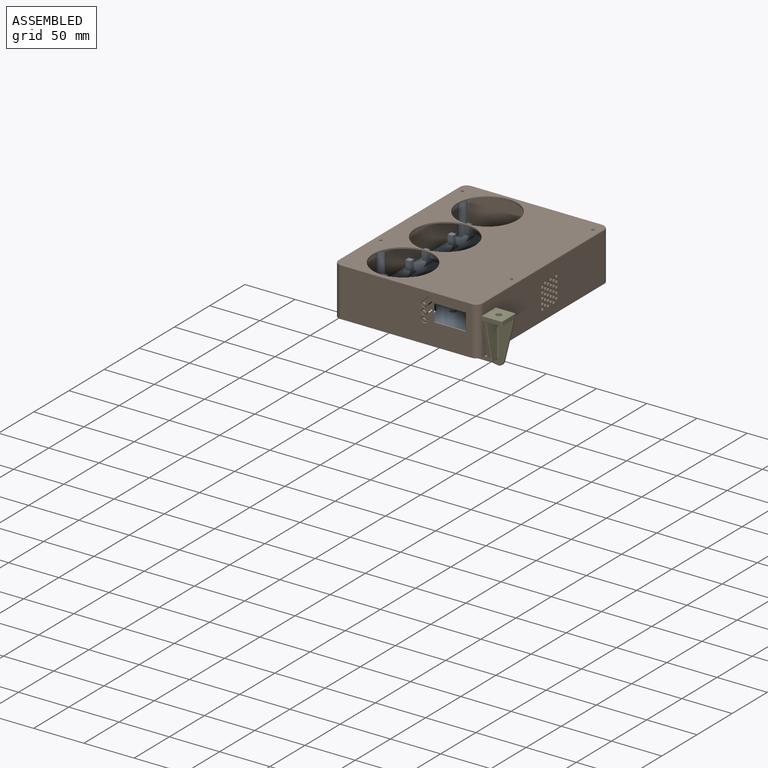
[diagram: assembled view]
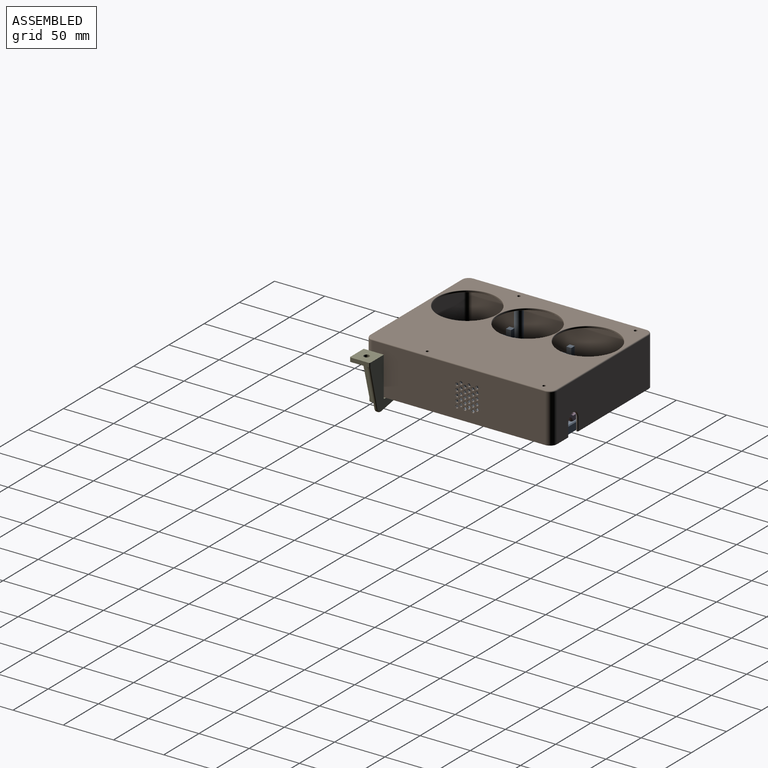
[diagram: assembled view, second angle]
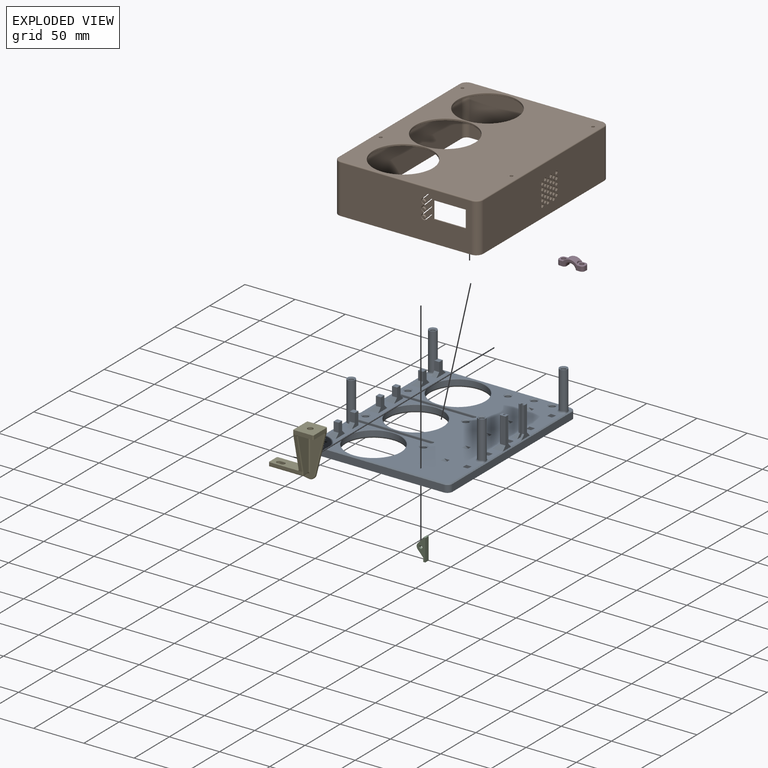
[diagram: exploded view]
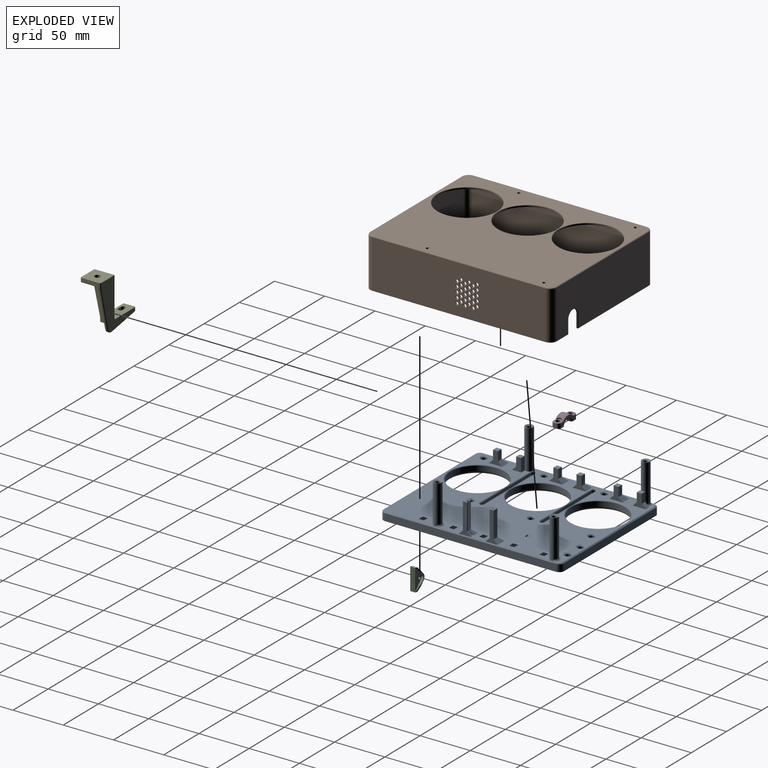
[diagram: exploded view, second angle]
FCSTD DOCUMENT  (FreeCAD 1.1R40444 (Git))
Label: heater_enclosure
License: All rights reserved
LicenseURL: https://en.wikipedia.org/wiki/All_rights_reserved
objects: PartDesign::Pocket×21, Sketcher::SketchObject×19, PartDesign::Pad×15, PartDesign::Fillet×13, PartDesign::Chamfer×9, PartDesign::LinearPattern×8, App::Point×6, PartDesign::Body×5, App::FeaturePython×2, PartDesign::Thickness×1, PartDesign::MultiTransform×1, Assembly::JointGroup×1, Assembly::AssemblyObject×1
note: 238 computed .brp shape members not serialized (recipe doc carries the construction recipe); baked Part::Feature solids carry a one-line shape summary decoded from their .brp

FEATURE [App::Point] Origin001
  Role = Origin
FEATURE [App::Point] Origin003
  Role = Origin
FEATURE [Sketcher::SketchObject] Sketch
  ArcFitTolerance = 1e-06
  AttachmentSupport = -> [XY_Plane001]
  ExternalTypes = [0]
  FullyConstrained = true
  MakeInternals = false
  MapMode = 5
  sketch-geometry (55):
    g0: LineSegment StartX=0 StartY=0 StartZ=0 EndX=0 EndY=-180 EndZ=0
    g1: LineSegment StartX=0 StartY=-180 StartZ=0 EndX=140 EndY=-180 EndZ=0
    g2: LineSegment StartX=140 StartY=-180 StartZ=0 EndX=140 EndY=0 EndZ=0
    g3: LineSegment StartX=140 StartY=0 StartZ=0 EndX=0 EndY=0 EndZ=0
    g4: LineSegment [constr] StartX=14 StartY=0 StartZ=0 EndX=14 EndY=-60 EndZ=0
    g5: LineSegment [constr] StartX=14 StartY=-60 StartZ=0 EndX=74 EndY=-60 EndZ=0
    g6: LineSegment [constr] StartX=74 StartY=-60 StartZ=0 EndX=74 EndY=0 EndZ=0
    g7: LineSegment [constr] StartX=74 StartY=0 StartZ=0 EndX=14 EndY=0 EndZ=0
    g8: LineSegment [constr] StartX=87 StartY=-5 StartZ=0 EndX=87 EndY=-17 EndZ=0
    g9: LineSegment [constr] StartX=87 StartY=-17 StartZ=0 EndX=74 EndY=-17 EndZ=0
    g10: LineSegment [constr] StartX=1 StartY=-55 StartZ=0 EndX=1 EndY=-43 EndZ=0
    g11: LineSegment [constr] StartX=14 StartY=-43 StartZ=0 EndX=1 EndY=-55 EndZ=0
    g12: LineSegment [constr] StartX=14 StartY=0 StartZ=0 EndX=74 EndY=-60 EndZ=0
    g13: LineSegment [constr] StartX=14 StartY=-60 StartZ=0 EndX=74 EndY=0 EndZ=0
    g14: GeomPoint [constr] X=44 Y=-30 Z=0
    g15: Circle [constr] CenterX=44 CenterY=-30 CenterZ=0 NormalX=0 NormalY=0 NormalZ=1 AngleXU=0 Radius=26.5
    g16: LineSegment [constr] StartX=14 StartY=-13 StartZ=0 EndX=1 EndY=-13 EndZ=0
    g17: LineSegment [constr] StartX=1 StartY=-13 StartZ=0 EndX=1 EndY=-31 EndZ=0
    g18: LineSegment [constr] StartX=1 StartY=-31 StartZ=0 EndX=14 EndY=-31 EndZ=0
    g19: Circle CenterX=44 CenterY=-30 CenterZ=0 NormalX=0 NormalY=0 NormalZ=1 AngleXU=0 Radius=27
    g20: LineSegment [constr] StartX=1 StartY=-31 StartZ=0 EndX=3.05212 EndY=-36.6382 EndZ=0
    g21: LineSegment [constr] StartX=1 StartY=-13 StartZ=0 EndX=3.05212 EndY=-7.36184 EndZ=0
    g22: LineSegment StartX=13.5 StartY=-13 StartZ=0 EndX=13.5 EndY=-8 EndZ=0
    g23: LineSegment StartX=13.5 StartY=-8 StartZ=0 EndX=8.5 EndY=-8 EndZ=0
    g24: LineSegment StartX=8.5 StartY=-8 StartZ=0 EndX=8.5 EndY=-13 EndZ=0
    g25: LineSegment StartX=8.5 StartY=-13 StartZ=0 EndX=13.5 EndY=-13 EndZ=0
    g26: LineSegment StartX=13.5 StartY=-31 StartZ=0 EndX=8.5 EndY=-31 EndZ=0
    g27: LineSegment StartX=8.5 StartY=-31 StartZ=0 EndX=8.5 EndY=-36 EndZ=0
    g28: LineSegment StartX=8.5 StartY=-36 StartZ=0 EndX=13.5 EndY=-36 EndZ=0
    g29: LineSegment StartX=13.5 StartY=-36 StartZ=0 EndX=13.5 EndY=-31 EndZ=0
    g30: Circle CenterX=80.5 CenterY=-11 CenterZ=0 NormalX=0 NormalY=0 NormalZ=1 AngleXU=0 Radius=2.85
    g31: LineSegment [constr] StartX=74 StartY=-60 StartZ=0 EndX=99 EndY=-60 EndZ=0
    g32: LineSegment [constr] StartX=99 StartY=-60 StartZ=0 EndX=99 EndY=-17 EndZ=0
    g33: LineSegment [constr] StartX=1 StartY=-43 StartZ=0 EndX=14 EndY=-55 EndZ=0
    g34: LineSegment [constr] StartX=14 StartY=-55 StartZ=0 EndX=1 EndY=-55 EndZ=0
    g35: LineSegment [constr] StartX=14 StartY=-43 StartZ=0 EndX=1 EndY=-43 EndZ=0
    g36: Circle CenterX=7.5 CenterY=-49 CenterZ=0 NormalX=0 NormalY=0 NormalZ=1 AngleXU=0 Radius=2.85
    g37: LineSegment [constr] StartX=87 StartY=-5 StartZ=0 EndX=74 EndY=-5 EndZ=0
    g38: LineSegment [constr] StartX=74 StartY=-5 StartZ=0 EndX=87 EndY=-17 EndZ=0
    g39: LineSegment [constr] StartX=87 StartY=-5 StartZ=0 EndX=74 EndY=-17 EndZ=0
    g40: LineSegment [constr] StartX=99 StartY=-17 StartZ=0 EndX=87 EndY=-17 EndZ=0
    g41: Circle CenterX=14 CenterY=-10 CenterZ=0 NormalX=0 NormalY=0 NormalZ=1 AngleXU=0 Radius=2.85
    g42: Circle CenterX=126 CenterY=-10 CenterZ=0 NormalX=0 NormalY=0 NormalZ=1 AngleXU=0 Radius=2.85
    g43: Circle CenterX=14 CenterY=-170 CenterZ=0 NormalX=0 NormalY=0 NormalZ=1 AngleXU=0 Radius=2.85
    g44: Circle CenterX=126 CenterY=-170 CenterZ=0 NormalX=0 NormalY=0 NormalZ=1 AngleXU=0 Radius=2.85
    g45: Circle CenterX=5 CenterY=-126 CenterZ=0 NormalX=0 NormalY=0 NormalZ=1 AngleXU=0 Radius=4
    g46: Circle CenterX=5 CenterY=-10 CenterZ=0 NormalX=0 NormalY=0 NormalZ=1 AngleXU=0 Radius=4
    g47: Circle CenterX=135 CenterY=-126 CenterZ=0 NormalX=0 NormalY=0 NormalZ=1 AngleXU=0 Radius=4
    g48: Circle CenterX=135 CenterY=-10 CenterZ=0 NormalX=0 NormalY=0 NormalZ=1 AngleXU=0 Radius=4
    g49: Circle CenterX=103 CenterY=-6 CenterZ=0 NormalX=0 NormalY=0 NormalZ=1 AngleXU=0 Radius=2.85
    g50: Circle CenterX=121 CenterY=-6 CenterZ=0 NormalX=0 NormalY=0 NormalZ=1 AngleXU=0 Radius=2.85
    g51: ArcOfCircle CenterX=7.5 CenterY=-60 CenterZ=0 NormalX=0 NormalY=0 NormalZ=1 AngleXU=0 Radius=2 StartAngle=1.5708 EndAngle=4.71239
    g52: ArcOfCircle CenterX=80.5 CenterY=-60 CenterZ=0 NormalX=0 NormalY=0 NormalZ=1 AngleXU=0 Radius=2 StartAngle=4.71239 EndAngle=7.85398
    g53: LineSegment StartX=7.5 StartY=-58 StartZ=0 EndX=80.5 EndY=-58 EndZ=0
    g54: LineSegment StartX=7.5 StartY=-62 StartZ=0 EndX=80.5 EndY=-62 EndZ=0
  constraints (153):
    c: Coincident(g0,g1)
    c: Coincident(g1,g2)
    c: Coincident(g2,g3)
    c: Coincident(g3,g0)
    c: Vertical(g0)
    c: Vertical(g2)
    c: Horizontal(g1)
    c: Horizontal(g3)
    c: Coincident(g0,g-1)
    c: Coincident(g5,g6)
    c: Coincident(g6,g7)
    c: Coincident(g7,g4)
    c: Vertical(g4)
    c: Vertical(g6)
    c: Horizontal(g5)
    c: Horizontal(g7)
    c: Distance(g4,g6) = 60
    c: Distance(g5,g7) = 60
    c: Vertical(g8)
    c: Coincident(g8,g9)
    c: PointOnObject(g9,g6)
    c: Horizontal(g9)
    c: Vertical(g10)
    c: DistanceX(g6,g8) = 13
    c: DistanceY(g8,g8) = 12
    c: DistanceX(g10,g11) = 13
    c: DistanceY(g10,g10) = 12
    c: Coincident(g11,g10)
    c: Coincident(g12,g4)
    c: Coincident(g12,g5)
    c: Coincident(g13,g5)
    c: Coincident(g13,g6)
    c: Symmetric(g13,g13,g14)
    c: Diameter(g15) = 53
    c: Coincident(g15,g14)
    c: PointOnObject(g16,g4)
    c: Horizontal(g16)
    c: Coincident(g17,g16)
    c: Vertical(g17)
    c: Coincident(g18,g17)
    c: Horizontal(g18)
    c: DistanceX(g16,g16) = 13
    c: DistanceY(g17,g17) = 18
    c: DistanceY(g0,g0) = 180
    c: Diameter(g19) = 54
    c: Coincident(g19,g14)
    c: DistanceX(g3,g3) = 140
    c: Coincident(g20,g17)
    c: Distance(g20,g20) = 6
    c: Angle(g20,g18) = 1.22173
    c: Coincident(g21,g16)
    c: Equal(g21,g20)
    c: Angle(g16,g21) = 1.22173
    c: Coincident(g22,g23)
    c: Coincident(g23,g24)
    c: Coincident(g24,g25)
    c: Coincident(g25,g22)
    c: Vertical(g22)
    c: Vertical(g24)
    c: Horizontal(g23)
    c: Horizontal(g25)
    c: Distance(g22,g24) = 5
    c: Distance(g23,g25) = 5
    c: PointOnObject(g22,g16)
    c: DistanceX(g22,g16) = 0.5
    c: Coincident(g26,g27)
    c: Coincident(g27,g28)
    c: Coincident(g28,g29)
    c: Coincident(g29,g26)
    c: Horizontal(g26)
    c: Horizontal(g28)
    c: Vertical(g27)
    c: Vertical(g29)
    c: Distance(g27,g29) = 5
    c: Distance(g26,g28) = 5
    c: PointOnObject(g26,g18)
    c: DistanceX(g26,g18) = 0.5
    c: Distance(g31) = 25
    c: Coincident(g31,g5)
    c: Horizontal(g31)
    c: Coincident(g32,g31)
    c: PointOnObject(g32,g9)
    c: Vertical(g32)
    c: DistanceX(g10) = 1
    c: Coincident(g33,g10)
    c: PointOnObject(g33,g4)
    c: Coincident(g34,g33)
    c: Coincident(g34,g10)
    c: Horizontal(g34)
    c: Coincident(g35,g11)
    c: Coincident(g35,g10)
    c: Horizontal(g35)
    c: Coincident(g4,g5)
    c: PointOnObject(g11,g4)
    c: DistanceY(g4,g33) = 5
    c: Symmetric(g11,g11,g36)
    c: Diameter(g36) = 5.7
    c: Coincident(g37,g8)
    c: PointOnObject(g37,g6)
    c: Horizontal(g37)
    c: Coincident(g38,g37)
    c: Coincident(g38,g8)
    c: Coincident(g39,g8)
    c: Coincident(g39,g9)
    c: PointOnObject(g30,g38)
    c: PointOnObject(g30,g39)
    c: DistanceY(g37,g6) = 5
    c: Equal(g36,g30)
    c: Coincident(g40,g32)
    c: Coincident(g40,g8)
    c: DistanceY(g22,g4) = 8
    c: Equal(g41,g36)
    c: Equal(g41,g42)
    c: Equal(g42,g44)
    c: Equal(g44,g43)
    c: Vertical(g42,g44)
    c: Vertical(g43,g41)
    c: DistanceY(g0,g43) = 10
    c: DistanceX(g43) = 14
    c: DistanceX(g44,g1) = 14
    c: DistanceY(g42) = -10
    c: Horizontal(g41,g42)
    c: Horizontal(g43,g44)
    c: Diameter(g45) = 8
    c: DistanceX(g45) = 5
    c: Equal(g46,g45)
    c: Vertical(g46,g45)
    c: DistanceY(g46) = -10
    c: Equal(g48,g47)
    c: Equal(g47,g45)
    c: Horizontal(g45,g47)
    c: Horizontal(g46,g48)
    c: Vertical(g47,g48)
    c: DistanceX(g48,g2) = 5
    c: DistanceY(g45) = -126
    c: Equal(g30,g49)
    c: Equal(g49,g50)
    c: Horizontal(g50,g49)
    c: DistanceY(g50,g2) = 6
    c: DistanceX(g49,g50) = 18
    c: DistanceX(g50,g2) = 19
    c: PointOnObject(g4,g-1)
    c: Tangent(g51,g53) = 1.5708
    c: Tangent(g51,g54) = -1.5708
    c: Tangent(g52,g53) = 1.5708
    c: Tangent(g52,g54) = -1.5708
    c: Equal(g51,g52)
    c: Radius(g51) = 2
    c: PointOnObject(g52,g31)
    c: Horizontal(g53)
    c: Vertical(g36,g51)
    c: Vertical(g52,g30)
    c: Vertical(g22,g26)
FEATURE [PartDesign::Pad] Pad  label="plate"
  Direction = (0,0,1)
  Length = 8
  Length2 = 10
  Profile = -> Sketch [Edge4,Edge3,Edge2,Edge1]
  ReferenceAxis = -> Sketch [N_Axis]
  Refine = true
  Reversed = true
  Suppressed = false
  Type = 0
FEATURE [PartDesign::Pocket] Pocket  label="fan_hole"
  BaseFeature = -> Pad
  Direction = (0,0,-1)
  Length = 5
  Length2 = 5
  Profile = -> Sketch [Edge5]
  ReferenceAxis = -> Sketch [N_Axis]
  Refine = true
  Suppressed = false
  Type = 1
FEATURE [PartDesign::Pocket] Pocket001  label="insert_pocket"
  BaseFeature = -> Pocket
  Direction = (0,0,-1)
  Length = 6.5
  Length2 = 5
  Profile = -> Sketch [Edge15,Edge14]
  ReferenceAxis = -> Sketch [N_Axis]
  Refine = true
  Suppressed = false
  Type = 0
FEATURE [PartDesign::Pad] Pad001  label="thermal_switch_supports"
  BaseFeature = -> Pocket001
  Direction = (0,0,1)
  Length = 13
  Length2 = 10
  Profile = -> Sketch [Edge12,Edge11,Edge10,Edge13,Edge9,Edge8,Edge7,Edge6]
  ReferenceAxis = -> Sketch [N_Axis]
  Refine = true
  Suppressed = false
  Type = 0
FEATURE [PartDesign::LinearPattern] LinearPattern  label="fan_features"
  BaseFeature = -> Pad001
  Direction = -> Sketch [V_Axis]
  Length = 120
  Mode = 1
  Occurrences = 3
  Offset = 60
  Originals = -> [Pocket,Pad001,Pocket001]
  Refine = true
  Reversed = true
  Suppressed = false
  TransformMode = 0
FEATURE [Sketcher::SketchObject] Sketch001
  ArcFitTolerance = 1e-06
  AttachmentOffset = pos=(0,0,25) rot=(0,0,1;0rad)
  AttachmentSupport = -> [XZ_Plane001]
  ExternalTypes = [0]
  FullyConstrained = false
  MakeInternals = false
  MapMode = 5
  Placement = pos=(0,-25,5.6e-15) rot=(1,0,0;1.5708rad)
  sketch-geometry (4):
    g0: ArcOfCircle CenterX=121 CenterY=16 CenterZ=0 NormalX=0 NormalY=0 NormalZ=1 AngleXU=0 Radius=18 StartAngle=3.75287 EndAngle=5.67191
    g1: ArcOfCircle CenterX=121 CenterY=16 CenterZ=0 NormalX=0 NormalY=0 NormalZ=1 AngleXU=0 Radius=21 StartAngle=3.65589 EndAngle=5.76889
    g2: LineSegment StartX=139.283 StartY=5.66961 StartZ=0 EndX=135.741 EndY=5.66961 EndZ=0
    g3: LineSegment StartX=106.259 StartY=5.66961 StartZ=0 EndX=102.717 EndY=5.66961 EndZ=0
  constraints (12):
    c: Coincident(g1,g0)
    c: Coincident(g2,g1)
    c: Coincident(g2,g0)
    c: Coincident(g3,g0)
    c: Coincident(g3,g1)
    c: Horizontal(g3)
    c: Horizontal(g2)
    c: Horizontal(g0,g0)
    c: DistanceX(g0) = 121
    c: DistanceY(g-1,g0) = 16
    c: Radius(g0) = 18
    c: Radius(g1) = 21
FEATURE [PartDesign::Pocket] Pocket002
  BaseFeature = -> LinearPattern
  Direction = (0,1,-2e-16)
  Length = 5
  Length2 = 5
  Profile = -> Sketch001
  ReferenceAxis = -> Sketch001 [N_Axis]
  Refine = true
  Suppressed = false
  Type = 0
FEATURE [PartDesign::LinearPattern] LinearPattern001
  BaseFeature = -> Pocket002
  Direction = -> Sketch001 [N_Axis]
  Length = 120
  Mode = 1
  Occurrences = 5
  Offset = 30
  Originals = -> [Pocket002]
  Refine = true
  Suppressed = false
  TransformMode = 0
FEATURE [Sketcher::SketchObject] Sketch002
  ArcFitTolerance = 1e-06
  AttachmentSupport = -> [XY_Plane001]
  ExternalTypes = [0]
  FullyConstrained = false
  MakeInternals = false
  MapMode = 5
  sketch-geometry (28):
    g0: LineSegment [constr] StartX=139.015 StartY=-184.478 StartZ=0 EndX=139.015 EndY=-154.478 EndZ=0
    g1: LineSegment [constr] StartX=139.015 StartY=-154.478 StartZ=0 EndX=89.0151 EndY=-154.478 EndZ=0
    g2: LineSegment [constr] StartX=89.0151 StartY=-154.478 StartZ=0 EndX=89.0151 EndY=-184.478 EndZ=0
    g3: LineSegment [constr] StartX=89.0151 StartY=-184.478 StartZ=0 EndX=139.015 EndY=-184.478 EndZ=0
    g4: LineSegment [constr] StartX=131.868 StartY=-152.248 StartZ=0 EndX=131.868 EndY=-92.248 EndZ=0
    g5: LineSegment [constr] StartX=131.868 StartY=-92.248 StartZ=0 EndX=108.868 EndY=-92.248 EndZ=0
    g6: LineSegment [constr] StartX=108.868 StartY=-92.248 StartZ=0 EndX=108.868 EndY=-152.248 EndZ=0
    g7: LineSegment [constr] StartX=108.868 StartY=-152.248 StartZ=0 EndX=131.868 EndY=-152.248 EndZ=0
    g8: LineSegment [constr] StartX=137 StartY=-69.5762 StartZ=0 EndX=135 EndY=-69.5762 EndZ=0
    g9: LineSegment [constr] StartX=135 StartY=-69.5762 StartZ=0 EndX=135 EndY=-96.0762 EndZ=0
    g10: LineSegment [constr] StartX=135 StartY=-96.0762 StartZ=0 EndX=137 EndY=-96.0762 EndZ=0
    g11: LineSegment [constr] StartX=137 StartY=-96.0762 StartZ=0 EndX=137 EndY=-69.5762 EndZ=0
    g12: LineSegment StartX=135 StartY=-69.5762 StartZ=0 EndX=135 EndY=-71.5762 EndZ=0
    g13: LineSegment StartX=135 StartY=-71.5762 StartZ=0 EndX=133 EndY=-71.5762 EndZ=0
    g14: LineSegment StartX=133 StartY=-71.5762 StartZ=0 EndX=133 EndY=-67.5762 EndZ=0
    g15: LineSegment StartX=133 StartY=-67.5762 StartZ=0 EndX=139 EndY=-67.5762 EndZ=0
    g16: LineSegment StartX=139 StartY=-67.5762 StartZ=0 EndX=139 EndY=-71.5762 EndZ=0
    g17: LineSegment StartX=139 StartY=-71.5762 StartZ=0 EndX=137 EndY=-71.5762 EndZ=0
    g18: LineSegment StartX=137 StartY=-71.5762 StartZ=0 EndX=137 EndY=-69.5762 EndZ=0
    g19: LineSegment StartX=137 StartY=-69.5762 StartZ=0 EndX=135 EndY=-69.5762 EndZ=0
    g20: LineSegment StartX=137 StartY=-96.0762 StartZ=0 EndX=137 EndY=-94.0762 EndZ=0
    g21: LineSegment StartX=137 StartY=-94.0762 StartZ=0 EndX=139 EndY=-94.0762 EndZ=0
    g22: LineSegment StartX=139 StartY=-94.0762 StartZ=0 EndX=139 EndY=-98.0762 EndZ=0
    g23: LineSegment StartX=139 StartY=-98.0762 StartZ=0 EndX=133 EndY=-98.0762 EndZ=0
    g24: LineSegment StartX=133 StartY=-98.0762 StartZ=0 EndX=133 EndY=-94.0762 EndZ=0
    g25: LineSegment StartX=133 StartY=-94.0762 StartZ=0 EndX=135 EndY=-94.0762 EndZ=0
    g26: LineSegment StartX=135 StartY=-94.0762 StartZ=0 EndX=135 EndY=-96.0762 EndZ=0
    g27: LineSegment StartX=135 StartY=-96.0762 StartZ=0 EndX=137 EndY=-96.0762 EndZ=0
  constraints (75):
    c: Coincident(g0,g1)
    c: Coincident(g1,g2)
    c: Coincident(g2,g3)
    c: Coincident(g3,g0)
    c: Vertical(g0)
    c: Vertical(g2)
    c: Horizontal(g1)
    c: Horizontal(g3)
    c: Distance(g0,g2) = 50
    c: Distance(g1,g3) = 30
    c: Coincident(g4,g5)
    c: Coincident(g5,g6)
    c: Coincident(g6,g7)
    c: Coincident(g7,g4)
    c: Vertical(g4)
    c: Vertical(g6)
    c: Horizontal(g5)
    c: Horizontal(g7)
    c: Distance(g4,g6) = 23
    c: Distance(g5,g7) = 60
    c: Coincident(g8,g9)
    c: Coincident(g9,g10)
    c: Coincident(g10,g11)
    c: Coincident(g11,g8)
    c: Horizontal(g8)
    c: Horizontal(g10)
    c: Vertical(g9)
    c: Vertical(g11)
    c: Distance(g9,g11) = 2
    c: Distance(g8,g10) = 26.5
    c: DistanceX(g8) = 137
    c: Coincident(g8,g12)
    c: PointOnObject(g12,g9)
    c: Coincident(g12,g13)
    c: Horizontal(g13)
    c: Coincident(g13,g14)
    c: Vertical(g14)
    c: Coincident(g14,g15)
    c: Horizontal(g15)
    c: Coincident(g15,g16)
    c: Vertical(g16)
    c: Coincident(g16,g17)
    c: PointOnObject(g17,g11)
    c: Horizontal(g17)
    c: Coincident(g17,g18)
    c: Coincident(g18,g8)
    c: Coincident(g18,g19)
    c: Coincident(g19,g12)
    c: DistanceX(g13,g13) = 2
    c: Equal(g19,g12)
    c: Equal(g12,g18)
    c: Equal(g18,g17)
    c: DistanceY(g8,g14) = 2
    c: Coincident(g10,g20)
    c: PointOnObject(g20,g11)
    c: Coincident(g20,g21)
    c: Horizontal(g21)
    c: Coincident(g21,g22)
    c: Vertical(g22)
    c: Coincident(g22,g23)
    c: Horizontal(g23)
    c: Coincident(g23,g24)
    c: Vertical(g24)
    c: Coincident(g24,g25)
    c: PointOnObject(g25,g9)
    c: Horizontal(g25)
    c: Coincident(g25,g26)
    c: Coincident(g26,g9)
    c: Coincident(g26,g27)
    c: Coincident(g27,g20)
    c: DistanceY(g22,g10) = 2
    c: Equal(g25,g26)
    c: Equal(g26,g20)
    c: Equal(g20,g21)
    c: Equal(g21,g13)
FEATURE [PartDesign::Pad] Pad002
  BaseFeature = -> LinearPattern001
  Direction = (0,0,1)
  Length = 30
  Length2 = 10
  Profile = -> Sketch002
  ReferenceAxis = -> Sketch002 [N_Axis]
  Refine = true
  Suppressed = false
  Type = 0
FEATURE [App::Point] Origin005
  Role = Origin
FEATURE [Sketcher::SketchObject] Sketch003
  ArcFitTolerance = 1e-06
  AttachmentSupport = -> [XY_Plane002]
  ExternalTypes = [0]
  FullyConstrained = true
  MakeInternals = false
  MapMode = 5
  sketch-geometry (4):
    g0: LineSegment StartX=0 StartY=1 StartZ=0 EndX=0 EndY=-185 EndZ=0
    g1: LineSegment StartX=0 StartY=-185 StartZ=0 EndX=144 EndY=-185 EndZ=0
    g2: LineSegment StartX=144 StartY=-185 StartZ=0 EndX=144 EndY=1 EndZ=0
    g3: LineSegment StartX=144 StartY=1 StartZ=0 EndX=0 EndY=1 EndZ=0
  constraints (12):
    c: Vertical(g0)
    c: Vertical(g2)
    c: Horizontal(g1)
    c: Horizontal(g3)
    c: DistanceY(g0,g0) = 186
    c: DistanceX(g3,g3) = 144
    c: Coincident(g0,g3)
    c: PointOnObject(g0,g-2)
    c: Coincident(g1,g0)
    c: Coincident(g2,g1)
    c: Coincident(g2,g3)
    c: DistanceY(g-1,g0) = 1
FEATURE [PartDesign::Pad] Pad003
  Direction = (0,0,1)
  Length = 49
  Length2 = 10
  Profile = -> Sketch003
  ReferenceAxis = -> Sketch003 [N_Axis]
  Refine = true
  Suppressed = false
  Type = 0
FEATURE [PartDesign::Fillet] Fillet002
  Base = -> Pad003 [Edge5,Edge2,Edge1,Edge8]
  BaseFeature = -> Pad003
  Radius = 7
  Refine = true
  SupportTransform = false
  Suppressed = false
  UseAllEdges = false
FEATURE [PartDesign::Thickness] Thickness
  Base = -> Fillet002 [Face2]
  BaseFeature = -> Fillet002
  Intersection = false
  Join = 0
  Mode = 0
  Refine = true
  Reversed = true
  SupportTransform = false
  Suppressed = false
  Value = 2
FEATURE [Sketcher::SketchObject] Sketch004
  ArcFitTolerance = 1e-06
  AttachmentSupport = -> [Thickness]
  ExternalTypes = [0]
  FullyConstrained = false
  MakeInternals = false
  MapMode = 5
  Placement = pos=(0,0,49) rot=(0,0,1;0rad)
  sketch-geometry (43):
    g0: LineSegment StartX=0 StartY=0 StartZ=0 EndX=0 EndY=-185 EndZ=0
    g1: LineSegment StartX=140 StartY=0 StartZ=0 EndX=0 EndY=0 EndZ=0
    g2: LineSegment [constr] StartX=16 StartY=-2 StartZ=0 EndX=16 EndY=-62 EndZ=0
    g3: LineSegment [constr] StartX=16 StartY=-62 StartZ=0 EndX=76 EndY=-62 EndZ=0
    g4: LineSegment [constr] StartX=76 StartY=-62 StartZ=0 EndX=76 EndY=-2 EndZ=0
    g5: LineSegment [constr] StartX=76 StartY=-2 StartZ=0 EndX=16 EndY=-2 EndZ=0
    g6: LineSegment [constr] StartX=89 StartY=-7 StartZ=0 EndX=89 EndY=-19 EndZ=0
    g7: LineSegment [constr] StartX=89 StartY=-19 StartZ=0 EndX=76 EndY=-19 EndZ=0
    g8: LineSegment [constr] StartX=3 StartY=-57 StartZ=0 EndX=3 EndY=-45 EndZ=0
    g9: LineSegment [constr] StartX=16 StartY=-45 StartZ=0 EndX=3 EndY=-57 EndZ=0
    g10: LineSegment [constr] StartX=16 StartY=-2 StartZ=0 EndX=76 EndY=-62 EndZ=0
    g11: LineSegment [constr] StartX=16 StartY=-62 StartZ=0 EndX=76 EndY=-2 EndZ=0
    g12: GeomPoint [constr] X=46 Y=-32 Z=0
    g13: Circle [constr] CenterX=46 CenterY=-32 CenterZ=0 NormalX=0 NormalY=0 NormalZ=1 AngleXU=0 Radius=26.5
    g14: LineSegment [constr] StartX=16 StartY=-15 StartZ=0 EndX=3 EndY=-15 EndZ=0
    g15: LineSegment [constr] StartX=3 StartY=-15 StartZ=0 EndX=3 EndY=-33 EndZ=0
    g16: LineSegment [constr] StartX=3 StartY=-33 StartZ=0 EndX=14 EndY=-33 EndZ=0
    g17: Circle CenterX=46 CenterY=-32 CenterZ=0 NormalX=0 NormalY=0 NormalZ=1 AngleXU=0 Radius=29.5
    g18: LineSegment [constr] StartX=3 StartY=-33 StartZ=0 EndX=5.05212 EndY=-38.6382 EndZ=0
    g19: LineSegment [constr] StartX=3 StartY=-15 StartZ=0 EndX=5.05212 EndY=-9.36185 EndZ=0
    g20: LineSegment StartX=15.5 StartY=-15 StartZ=0 EndX=15.5 EndY=-10 EndZ=0
    g21: LineSegment StartX=15.5 StartY=-10 StartZ=0 EndX=10.5 EndY=-10 EndZ=0
    g22: LineSegment StartX=10.5 StartY=-10 StartZ=0 EndX=10.5 EndY=-15 EndZ=0
    g23: LineSegment StartX=10.5 StartY=-15 StartZ=0 EndX=15.5 EndY=-15 EndZ=0
    g24: LineSegment StartX=13.5 StartY=-33 StartZ=0 EndX=8.5 EndY=-33 EndZ=0
    g25: LineSegment StartX=8.5 StartY=-33 StartZ=0 EndX=8.5 EndY=-38 EndZ=0
    g26: LineSegment StartX=8.5 StartY=-38 StartZ=0 EndX=13.5 EndY=-38 EndZ=0
    g27: LineSegment StartX=13.5 StartY=-38 StartZ=0 EndX=13.5 EndY=-33 EndZ=0
    g28: Circle CenterX=82.5 CenterY=-13 CenterZ=0 NormalX=0 NormalY=0 NormalZ=1 AngleXU=0 Radius=2.85
    g29: LineSegment [constr] StartX=76 StartY=-62 StartZ=0 EndX=101 EndY=-62 EndZ=0
    g30: LineSegment [constr] StartX=101 StartY=-62 StartZ=0 EndX=101 EndY=-19 EndZ=0
    g31: LineSegment [constr] StartX=3 StartY=-45 StartZ=0 EndX=16 EndY=-57 EndZ=0
    g32: LineSegment [constr] StartX=16 StartY=-57 StartZ=0 EndX=3 EndY=-57 EndZ=0
    g33: LineSegment [constr] StartX=16 StartY=-45 StartZ=0 EndX=3 EndY=-45 EndZ=0
    g34: Circle CenterX=9.5 CenterY=-51 CenterZ=0 NormalX=0 NormalY=0 NormalZ=1 AngleXU=0 Radius=2.85
    g35: LineSegment [constr] StartX=89 StartY=-7 StartZ=0 EndX=76 EndY=-7 EndZ=0
    g36: LineSegment [constr] StartX=76 StartY=-7 StartZ=0 EndX=89 EndY=-19 EndZ=0
    g37: LineSegment [constr] StartX=89 StartY=-7 StartZ=0 EndX=76 EndY=-19 EndZ=0
    g38: LineSegment [constr] StartX=101 StartY=-19 StartZ=0 EndX=89 EndY=-19 EndZ=0
    g39: Circle CenterX=7 CenterY=-12 CenterZ=0 NormalX=0 NormalY=0 NormalZ=1 AngleXU=0 Radius=1.5
    g40: Circle CenterX=137 CenterY=-12 CenterZ=0 NormalX=0 NormalY=0 NormalZ=1 AngleXU=0 Radius=1.5
    g41: Circle CenterX=7 CenterY=-128 CenterZ=0 NormalX=0 NormalY=0 NormalZ=1 AngleXU=0 Radius=1.5
    g42: Circle CenterX=137 CenterY=-128 CenterZ=0 NormalX=0 NormalY=0 NormalZ=1 AngleXU=0 Radius=1.5
  constraints (119):
    c: Coincident(g1,g0)
    c: Vertical(g0)
    c: Horizontal(g1)
    c: Coincident(g0,g-1)
    c: Coincident(g3,g4)
    c: Coincident(g4,g5)
    c: Coincident(g5,g2)
    c: Vertical(g2)
    c: Vertical(g4)
    c: Horizontal(g3)
    c: Horizontal(g5)
    c: Distance(g2,g4) = 60
    c: Distance(g3,g5) = 60
    c: Vertical(g6)
    c: Coincident(g6,g7)
    c: PointOnObject(g7,g4)
    c: Horizontal(g7)
    c: DistanceX(g4,g6) = 13
    c: DistanceY(g6,g6) = 12
    c: DistanceX(g8,g9) = 13
    c: DistanceY(g8,g8) = 12
    c: Coincident(g9,g8)
    c: Coincident(g10,g2)
    c: Coincident(g10,g3)
    c: Coincident(g11,g3)
    c: Coincident(g11,g4)
    c: Symmetric(g11,g11,g12)
    c: Diameter(g13) = 53
    c: Coincident(g13,g12)
    c: PointOnObject(g14,g2)
    c: Horizontal(g14)
    c: Coincident(g15,g14)
    c: Vertical(g15)
    c: Coincident(g16,g15)
    c: Horizontal(g16)
    c: DistanceX(g14,g14) = 13
    c: DistanceY(g15,g15) = 18
    c: DistanceY(g0,g0) = 185
    c: Diameter(g17) = 59
    c: Coincident(g17,g12)
    c: DistanceX(g1,g1) = 140
    c: Coincident(g18,g15)
    c: Distance(g18,g18) = 6
    c: Angle(g18,g16) = 1.22173
    c: Coincident(g19,g14)
    c: Equal(g19,g18)
    c: Angle(g14,g19) = 1.22173
    c: Coincident(g20,g21)
    c: Coincident(g21,g22)
    c: Coincident(g22,g23)
    c: Coincident(g23,g20)
    c: Vertical(g20)
    c: Vertical(g22)
    c: Horizontal(g21)
    c: Horizontal(g23)
    c: Distance(g20,g22) = 5
    c: Distance(g21,g23) = 5
    c: PointOnObject(g20,g14)
    c: DistanceX(g20,g14) = 0.5
    c: Coincident(g24,g25)
    c: Coincident(g25,g26)
    c: Coincident(g26,g27)
    c: Coincident(g27,g24)
    c: Horizontal(g24)
    c: Horizontal(g26)
    c: Vertical(g25)
    c: Vertical(g27)
    c: Distance(g25,g27) = 5
    c: Distance(g24,g26) = 5
    c: PointOnObject(g24,g16)
    c: DistanceX(g24,g16) = 0.5
    c: Distance(g29) = 25
    c: Coincident(g29,g3)
    c: Horizontal(g29)
    c: Coincident(g30,g29)
    c: PointOnObject(g30,g7)
    c: Vertical(g30)
    c: Coincident(g31,g8)
    c: PointOnObject(g31,g2)
    c: Coincident(g32,g31)
    c: Coincident(g32,g8)
    c: Horizontal(g32)
    c: Coincident(g33,g9)
    c: Coincident(g33,g8)
    c: Horizontal(g33)
    c: Coincident(g2,g3)
    c: PointOnObject(g9,g2)
    c: DistanceY(g2,g31) = 5
    c: Symmetric(g9,g9,g34)
    c: Diameter(g34) = 5.7
    c: Coincident(g35,g6)
    c: PointOnObject(g35,g4)
    c: Horizontal(g35)
    c: Coincident(g36,g35)
    c: Coincident(g36,g6)
    c: Coincident(g37,g6)
    c: Coincident(g37,g7)
    c: PointOnObject(g28,g36)
    c: PointOnObject(g28,g37)
    c: DistanceY(g35,g4) = 5
    c: Equal(g34,g28)
    c: Coincident(g38,g30)
    c: Coincident(g38,g6)
    c: DistanceY(g20,g2) = 8
    c: Vertical(g8)
    c: DistanceY(g2) = -2
    c: DistanceX(g8) = 3
    c: Vertical(g42,g40)
    c: Vertical(g39,g41)
    c: Horizontal(g39,g40)
    c: Horizontal(g41,g42)
    c: Diameter(g41) = 3
    c: Equal(g41,g42)
    c: Equal(g42,g40)
    c: Equal(g40,g39)
    c: DistanceY(g40) = -12
    c: DistanceY(g42) = -128
    c: DistanceX(g41) = 7
    c: DistanceX(g40) = 137
FEATURE [PartDesign::Pocket] Pocket003
  BaseFeature = -> Thickness
  Direction = (0,0,-1)
  Length = 5
  Length2 = 5
  Profile = -> Sketch004 [Edge3]
  ReferenceAxis = -> Sketch004 [N_Axis]
  Refine = true
  Suppressed = false
  Type = 1
FEATURE [PartDesign::LinearPattern] LinearPattern002
  BaseFeature = -> Pocket003
  Direction = -> Sketch004 [V_Axis]
  Length = 120
  Mode = 1
  Occurrences = 3
  Offset = 60
  Originals = -> [Pocket003]
  Refine = true
  Reversed = true
  Suppressed = false
  TransformMode = 0
FEATURE [PartDesign::Pocket] Pocket004
  BaseFeature = -> Pad002
  Direction = (0,0,-1)
  Length = 13
  Length2 = -1.5
  Profile = -> Sketch [Edge16,Edge17,Edge19,Edge18]
  ReferenceAxis = -> Sketch [N_Axis]
  Refine = true
  Suppressed = false
  Type = 4
FEATURE [PartDesign::Pad] Pad004
  BaseFeature = -> Pocket004
  Direction = (0,0,1)
  Length = 39
  Length2 = 10
  Profile = -> Sketch [Edge20,Edge22,Edge23,Edge21]
  ReferenceAxis = -> Sketch [N_Axis]
  Refine = true
  Suppressed = false
  Type = 0
FEATURE [Sketcher::SketchObject] Sketch005
  ArcFitTolerance = 1e-06
  AttachmentSupport = -> [Pad004]
  ExternalGeometry = -> [Pad004]
  ExternalTypes = [0,0,0,0]
  FullyConstrained = true
  MakeInternals = false
  MapMode = 5
  Placement = pos=(0,0,39) rot=(0,0,1;0rad)
  sketch-geometry (4):
    g0: Circle CenterX=5 CenterY=-126 CenterZ=0 NormalX=0 NormalY=0 NormalZ=1 AngleXU=0 Radius=2.35
    g1: Circle CenterX=5 CenterY=-10 CenterZ=0 NormalX=0 NormalY=0 NormalZ=1 AngleXU=0 Radius=2.35
    g2: Circle CenterX=135 CenterY=-10 CenterZ=0 NormalX=0 NormalY=0 NormalZ=1 AngleXU=0 Radius=2.35
    g3: Circle CenterX=135 CenterY=-126 CenterZ=0 NormalX=0 NormalY=0 NormalZ=1 AngleXU=0 Radius=2.35
  constraints (8):
    c: Diameter(g0) = 4.7
    c: Coincident(g0,g-3)
    c: Coincident(g1,g-6)
    c: Coincident(g2,g-5)
    c: Coincident(g3,g-4)
    c: Equal(g0,g3)
    c: Equal(g3,g2)
    c: Equal(g2,g1)
FEATURE [PartDesign::Pocket] Pocket005
  BaseFeature = -> Pad004
  Direction = (0,0,-1)
  Length = 10
  Length2 = 5
  Profile = -> Sketch005 [Edge1,Edge2,Edge3,Edge4]
  ReferenceAxis = -> Sketch005 [N_Axis]
  Refine = true
  Suppressed = false
  Type = 0
FEATURE [PartDesign::Chamfer] Chamfer004
  Angle = 45
  Base = -> Pocket005 [Edge250,Edge252,Edge253,Edge251]
  BaseFeature = -> Pocket005
  ChamferType = 0
  FlipDirection = false
  Refine = true
  Size = 1
  Size2 = 1
  SupportTransform = false
  Suppressed = false
  UseAllEdges = false
FEATURE [Sketcher::SketchObject] Sketch006
  ArcFitTolerance = 1e-06
  AttachmentSupport = -> [LinearPattern002]
  ExternalTypes = [0]
  FullyConstrained = true
  MakeInternals = false
  MapMode = 5
  Placement = pos=(144,0,0) rot=(0.57735,0.57735,0.57735;2.0944rad)
  sketch-geometry (15):
    g0: LineSegment StartX=-93.134 StartY=12.5 StartZ=0 EndX=-94.866 EndY=12.5 EndZ=0
    g1: LineSegment StartX=-94.866 StartY=12.5 StartZ=0 EndX=-95.7321 EndY=11 EndZ=0
    g2: LineSegment StartX=-95.7321 StartY=11 StartZ=0 EndX=-94.866 EndY=9.5 EndZ=0
    g3: LineSegment StartX=-94.866 StartY=9.5 StartZ=0 EndX=-93.134 EndY=9.5 EndZ=0
    g4: LineSegment StartX=-93.134 StartY=9.5 StartZ=0 EndX=-92.2679 EndY=11 EndZ=0
    g5: LineSegment StartX=-92.2679 StartY=11 StartZ=0 EndX=-93.134 EndY=12.5 EndZ=0
    g6: Circle [constr] CenterX=-94 CenterY=11 CenterZ=0 NormalX=0 NormalY=0 NormalZ=1 AngleXU=0 Radius=1.73205
    g7: LineSegment [constr] StartX=-94 StartY=11 StartZ=0 EndX=-90 EndY=13.3094 EndZ=0
    g8: LineSegment StartX=-88.2679 StartY=13.3094 StartZ=0 EndX=-89.134 EndY=14.8094 EndZ=0
    g9: LineSegment StartX=-89.134 StartY=14.8094 StartZ=0 EndX=-90.866 EndY=14.8094 EndZ=0
    g10: LineSegment StartX=-90.866 StartY=14.8094 StartZ=0 EndX=-91.7321 EndY=13.3094 EndZ=0
    g11: LineSegment StartX=-91.7321 StartY=13.3094 StartZ=0 EndX=-90.866 EndY=11.8094 EndZ=0
    g12: LineSegment StartX=-90.866 StartY=11.8094 StartZ=0 EndX=-89.134 EndY=11.8094 EndZ=0
    g13: LineSegment StartX=-89.134 StartY=11.8094 StartZ=0 EndX=-88.2679 EndY=13.3094 EndZ=0
    g14: Circle [constr] CenterX=-90 CenterY=13.3094 CenterZ=0 NormalX=0 NormalY=0 NormalZ=1 AngleXU=0 Radius=1.73205
  constraints (36):
    c: Coincident(g0,g1)
    c: Coincident(g1,g2)
    c: Coincident(g2,g3)
    c: Coincident(g3,g4)
    c: Coincident(g4,g5)
    c: Coincident(g5,g0)
    c: Equal(g0, g1-g5) x5
    c: PointOnObject(g0,g6)
    c: PointOnObject(g1,g6)
    c: PointOnObject(g2,g6)
    c: PointOnObject(g3,g6)
    c: PointOnObject(g4,g6)
    c: PointOnObject(g5,g6)
    c: Horizontal(g6,g4)
    c: DistanceY(g3,g0) = 3
    c: Coincident(g7,g6)
    c: Coincident(g8,g9)
    c: Coincident(g9,g10)
    c: Coincident(g10,g11)
    c: Coincident(g11,g12)
    c: Coincident(g12,g13)
    c: Coincident(g13,g8)
    c: Equal(g8, g9-g13) x5
    c: PointOnObject(g8,g14)
    c: PointOnObject(g9,g14)
    c: PointOnObject(g10,g14)
    c: PointOnObject(g11,g14)
    c: PointOnObject(g12,g14)
    c: PointOnObject(g13,g14)
    c: Coincident(g14,g7)
    c: Horizontal(g8,g7)
    c: DistanceY(g12,g8) = 3
    c: Angle(g7) = 0.523599
    c: DistanceY(g6) = 11
    c: DistanceX(g6) = -94
    c: DistanceX(g6,g7) = 4
FEATURE [PartDesign::Pocket] Pocket006
  BaseFeature = -> LinearPattern002
  Direction = (-1,0,0)
  Length = 5
  Length2 = 5
  Profile = -> Sketch006
  ReferenceAxis = -> Sketch006 [N_Axis]
  Refine = true
  Suppressed = false
  Type = 2
FEATURE [PartDesign::LinearPattern] LinearPattern003
  Direction = -> Sketch006 [H_Axis]
  Length = 16
  Mode = 1
  Occurrences = 3
  Offset = 8
  Refine = true
  Suppressed = false
  TransformMode = 0
FEATURE [PartDesign::LinearPattern] LinearPattern004
  Direction = -> Sketch006 [V_Axis]
  Length = 20
  Mode = 1
  Occurrences = 5
  Offset = 5
  Refine = true
  Suppressed = false
  TransformMode = 0
FEATURE [PartDesign::MultiTransform] MultiTransform
  BaseFeature = -> Pocket006
  Originals = -> [Pocket006]
  Refine = true
  Suppressed = false
  TransformMode = 0
  Transformations = -> [LinearPattern003,LinearPattern004]
FEATURE [Sketcher::SketchObject] Sketch007
  ArcFitTolerance = 1e-06
  AttachmentSupport = -> [MultiTransform]
  ExternalTypes = [0]
  FullyConstrained = false
  MakeInternals = false
  MapMode = 5
  Placement = pos=(0,-185,0) rot=(1,0,0;1.5708rad)
  sketch-geometry (39):
    g0: LineSegment StartX=131.5 StartY=39 StartZ=0 EndX=99.5 EndY=39 EndZ=0
    g1: LineSegment StartX=99.5 StartY=39 StartZ=0 EndX=99.5 EndY=22 EndZ=0
    g2: LineSegment StartX=99.5 StartY=22 StartZ=0 EndX=131.5 EndY=22 EndZ=0
    g3: LineSegment StartX=131.5 StartY=22 StartZ=0 EndX=131.5 EndY=39 EndZ=0
    g4: LineSegment StartX=98 StartY=40.5 StartZ=0 EndX=98 EndY=15.5 EndZ=0
    g5: LineSegment StartX=98 StartY=15.5 StartZ=0 EndX=133 EndY=15.5 EndZ=0
    g6: LineSegment StartX=133 StartY=15.5 StartZ=0 EndX=133 EndY=40.5 EndZ=0
    g7: LineSegment StartX=133 StartY=40.5 StartZ=0 EndX=98 EndY=40.5 EndZ=0
    g8: LineSegment StartX=85 StartY=45 StartZ=0 EndX=85 EndY=43 EndZ=0
    g9: LineSegment StartX=85 StartY=11 StartZ=0 EndX=133 EndY=11 EndZ=0
    g10: LineSegment StartX=133 StartY=11 StartZ=0 EndX=133 EndY=13 EndZ=0
    g11: LineSegment StartX=133 StartY=45 StartZ=0 EndX=85 EndY=45 EndZ=0
    g12: LineSegment StartX=85 StartY=13 StartZ=0 EndX=133 EndY=13 EndZ=0
    g13: LineSegment StartX=133 StartY=43 StartZ=0 EndX=85 EndY=43 EndZ=0
    g14: LineSegment StartX=83 StartY=47 StartZ=0 EndX=83 EndY=9 EndZ=0
    g15: LineSegment StartX=83 StartY=9 StartZ=0 EndX=135 EndY=9 EndZ=0
    g16: LineSegment StartX=135 StartY=9 StartZ=0 EndX=135 EndY=47 EndZ=0
    g17: LineSegment StartX=135 StartY=47 StartZ=0 EndX=83 EndY=47 EndZ=0
    g18: LineSegment StartX=85 StartY=13 StartZ=0 EndX=85 EndY=11 EndZ=0
    g19: LineSegment StartX=85 StartY=43 StartZ=0 EndX=85 EndY=13 EndZ=0
    g20: LineSegment StartX=133 StartY=15.5 StartZ=0 EndX=133 EndY=40.5 EndZ=0
    g21: LineSegment StartX=133 StartY=43 StartZ=0 EndX=133 EndY=45 EndZ=0
    g22: LineSegment StartX=133 StartY=13 StartZ=0 EndX=133 EndY=15.5 EndZ=0
    g23: LineSegment StartX=133 StartY=40.5 StartZ=0 EndX=133 EndY=43 EndZ=0
    g24: LineSegment [constr] StartX=85 StartY=35.5 StartZ=0 EndX=98 EndY=35.5 EndZ=0
    g25: LineSegment [constr] StartX=85 StartY=27.5 StartZ=0 EndX=98.0337 EndY=27.5 EndZ=0
    g26: LineSegment [constr] StartX=98 StartY=20.5 StartZ=0 EndX=85 EndY=20.5 EndZ=0
    g27: LineSegment [constr] StartX=90 StartY=35.5 StartZ=0 EndX=90 EndY=20.5 EndZ=0
    g28: ArcOfCircle CenterX=90 CenterY=35.5 CenterZ=0 NormalX=0 NormalY=0 NormalZ=1 AngleXU=0 Radius=2.075 StartAngle=2.35619 EndAngle=5.49779
    g29: LineSegment StartX=88.5328 StartY=36.9672 StartZ=0 EndX=94.331 EndY=42.7655 EndZ=0
    g30: LineSegment StartX=91.4672 StartY=34.0328 StartZ=0 EndX=97.2655 EndY=39.831 EndZ=0
    g31: ArcOfCircle CenterX=90 CenterY=35.5 CenterZ=0 NormalX=0 NormalY=0 NormalZ=1 AngleXU=0 Radius=2.875 StartAngle=2.35619 EndAngle=5.49779
    g32: LineSegment StartX=87.9671 StartY=37.5329 StartZ=0 EndX=93.7653 EndY=43.3312 EndZ=0
    g33: LineSegment StartX=92.0329 StartY=33.4671 StartZ=0 EndX=97.8312 EndY=39.2653 EndZ=0
    g34: ArcOfCircle CenterX=94.0482 CenterY=43.0484 CenterZ=0 NormalX=0 NormalY=0 NormalZ=1 AngleXU=0 Radius=0.4 StartAngle=5.49779 EndAngle=8.63938
    g35: ArcOfCircle CenterX=97.5484 CenterY=39.5482 CenterZ=0 NormalX=0 NormalY=0 NormalZ=1 AngleXU=0 Radius=0.4 StartAngle=5.49779 EndAngle=8.63938
    g36: LineSegment [constr] StartX=97.2655 StartY=39.831 StartZ=0 EndX=97.8312 EndY=39.2653 EndZ=0
    g37: LineSegment [constr] StartX=93.7653 StartY=43.3312 StartZ=0 EndX=94.331 EndY=42.7655 EndZ=0
    g38: LineSegment [constr] StartX=94.331 StartY=42.7655 StartZ=0 EndX=97.2655 EndY=39.831 EndZ=0
  constraints (111):
    c: Coincident(g0,g1)
    c: Coincident(g1,g2)
    c: Coincident(g2,g3)
    c: Coincident(g3,g0)
    c: Horizontal(g0)
    c: Horizontal(g2)
    c: Vertical(g1)
    c: Vertical(g3)
    c: Distance(g1,g3) = 32
    c: Distance(g0,g2) = 17
    c: Coincident(g4,g5)
    c: Coincident(g5,g6)
    c: Coincident(g6,g7)
    c: Coincident(g7,g4)
    c: Vertical(g4)
    c: Vertical(g6)
    c: Horizontal(g5)
    c: Horizontal(g7)
    c: Distance(g4,g6) = 35
    c: Distance(g5,g7) = 25
    c: DistanceX(g0,g6) = 1.5
    c: DistanceY(g0,g6) = 1.5
    c: Coincident(g18,g9)
    c: Coincident(g9,g10)
    c: Coincident(g21,g11)
    c: Coincident(g11,g8)
    c: Horizontal(g9)
    c: Horizontal(g11)
    c: Distance(g8,g21) = 48
    c: Distance(g9,g11) = 34
    c: DistanceY(g6,g21) = 4.5
    c: Horizontal(g12)
    c: Horizontal(g13)
    c: DistanceY(g9,g12) = 2
    c: DistanceY(g13,g21) = 2
    c: Coincident(g14,g15)
    c: Coincident(g15,g16)
    c: Coincident(g16,g17)
    c: Coincident(g17,g14)
    c: Vertical(g14)
    c: Vertical(g16)
    c: Horizontal(g15)
    c: Horizontal(g17)
    c: DistanceY(g15,g9) = 2
    c: DistanceX(g9,g15) = 2
    c: DistanceY(g8,g14) = 2
    c: DistanceX(g14,g8) = 2
    c: DistanceY(g16) = 47
    c: DistanceX(g16) = 135
    c: Vertical(g8)
    c: Vertical(g18)
    c: Coincident(g12,g18)
    c: Coincident(g13,g8)
    c: Coincident(g19,g8)
    c: Coincident(g19,g12)
    c: Vertical(g19)
    c: Vertical(g10)
    c: PointOnObject(g6,g10)
    c: Coincident(g12,g10)
    c: PointOnObject(g13,g10)
    c: Coincident(g20,g5)
    c: Vertical(g21)
    c: Coincident(g20,g6)
    c: Coincident(g21,g13)
    c: Coincident(g10,g22)
    c: Coincident(g22,g5)
    c: Coincident(g23,g6)
    c: Coincident(g23,g13)
    c: PointOnObject(g24,g19)
    c: PointOnObject(g24,g4)
    c: Horizontal(g24)
    c: PointOnObject(g25,g19)
    c: Horizontal(g25)
    c: PointOnObject(g26,g4)
    c: PointOnObject(g26,g19)
    c: Horizontal(g26)
    c: DistanceY(g9,g26) = 9.5
    c: DistanceY(g9,g25) = 16.5
    c: DistanceY(g24,g8) = 9.5
    c: PointOnObject(g27,g24)
    c: Vertical(g27)
    c: PointOnObject(g27,g26)
    c: DistanceX(g26,g27) = 5
    c: Tangent(g28,g29) = 1.5708
    c: Tangent(g28,g30) = -1.5708
    c: Coincident(g28,g27)
    c: Tangent(g31,g32) = 1.5708
    c: Tangent(g31,g33) = -1.5708
    c: Coincident(g31,g27)
    c: Coincident(g35,g30)
    c: Coincident(g35,g33)
    c: Coincident(g29,g34)
    c: Coincident(g32,g34)
    c: Coincident(g36,g30)
    c: Coincident(g36,g33)
    c: PointOnObject(g35,g36)
    c: Perpendicular(g33,g36)
    c: Coincident(g37,g32)
    c: Coincident(g37,g29)
    c: PointOnObject(g34,g37)
    c: Perpendicular(g29,g37)
    c: Coincident(g38,g29)
    c: Coincident(g38,g30)
    c: Parallel(g36,g38)
    c: Parallel(g38,g37)
    c: Parallel(g30,g33)
    c: Parallel(g29,g32)
    c: Angle(g33) = 0.785398
    c: Distance(g33,g30) = 0.8
    c: Distance(g29,g30) = 4.15
    c: Distance(g31,g33) = 8.2
FEATURE [PartDesign::Pocket] Pocket007
  BaseFeature = -> MultiTransform
  Direction = (0,1,-2e-16)
  Length = 5
  Length2 = 5
  Profile = -> Sketch007 [Edge4,Edge3,Edge2,Edge1]
  ReferenceAxis = -> Sketch007 [N_Axis]
  Refine = true
  Suppressed = false
  Type = 2
FEATURE [PartDesign::Pocket] Pocket008
  BaseFeature = -> Pocket007
  Direction = (0,1,-2e-16)
  Length = 10
  Length2 = -1
  Profile = -> Sketch007 [Edge6,Edge5,Edge20,Edge7]
  ReferenceAxis = -> Sketch007 [N_Axis]
  Refine = true
  Suppressed = false
  Type = 4
FEATURE [PartDesign::Pad] Pad005
  BaseFeature = -> Pocket008
  Direction = (0,-1,2e-16)
  Length = 5
  Length2 = 10
  Profile = -> Sketch007 [Edge17,Edge11,Edge10,Edge12,Edge13,Edge9,Edge14,Edge15]
  ReferenceAxis = -> Sketch007 [N_Axis]
  Refine = true
  Reversed = true
  Suppressed = false
  Type = 0
FEATURE [PartDesign::Pad] Pad006
  BaseFeature = -> Pad005
  Direction = (0,-1,2e-16)
  Length = 6
  Length2 = 10
  Profile = -> Sketch007 [Edge23,Edge22,Edge21,Edge24,Edge14,Edge13,Edge8,Edge7,Edge12,Edge18,Edge11,Edge10,Edge16,Edge15]
  ReferenceAxis = -> Sketch007 [N_Axis]
  Refine = true
  Reversed = true
  Suppressed = false
  Type = 0
FEATURE [PartDesign::Pocket] Pocket009
  BaseFeature = -> Pad006
  Direction = (0,1,-2e-16)
  Length = 5
  Length2 = 5
  Profile = -> Sketch007 [Edge26,Edge25,Edge32,Edge31,Edge30,Edge29,Edge28,Edge27]
  ReferenceAxis = -> Sketch007 [N_Axis]
  Refine = true
  Suppressed = false
  Type = 2
FEATURE [PartDesign::LinearPattern] LinearPattern005
  BaseFeature = -> Pocket009
  Direction = -> Sketch007 [V_Axis]
  Length = 14
  Mode = 1
  Occurrences = 3
  Offset = 7
  Originals = -> [Pocket009]
  Refine = true
  Reversed = true
  Suppressed = false
  TransformMode = 0
FEATURE [Sketcher::SketchObject] Sketch008
  ArcFitTolerance = 1e-06
  AttachmentSupport = -> [LinearPattern005]
  ExternalGeometry = -> [LinearPattern005]
  ExternalTypes = [0,0]
  FullyConstrained = true
  MakeInternals = false
  MapMode = 5
  Placement = pos=(0,-183,0) rot=(0,0.707107,0.707107;3.14159rad)
  sketch-geometry (7):
    g0: LineSegment [constr] StartX=-137 StartY=28 StartZ=0 EndX=-81 EndY=28 EndZ=0
    g1: GeomPoint [constr] X=-135 Y=28 Z=0
    g2: GeomPoint [constr] X=-83 Y=28 Z=0
    g3: Circle CenterX=-137 CenterY=28 CenterZ=0 NormalX=0 NormalY=0 NormalZ=1 AngleXU=0 Radius=4
    g4: Circle CenterX=-81 CenterY=28 CenterZ=0 NormalX=0 NormalY=0 NormalZ=1 AngleXU=0 Radius=4
    g5: Circle CenterX=-137 CenterY=28 CenterZ=0 NormalX=0 NormalY=0 NormalZ=1 AngleXU=0 Radius=2.35
    g6: Circle CenterX=-81 CenterY=28 CenterZ=0 NormalX=0 NormalY=0 NormalZ=1 AngleXU=0 Radius=2.35
  constraints (14):
    c: Horizontal(g0)
    c: Symmetric(g-3,g-3,g1)
    c: Symmetric(g-4,g-4,g2)
    c: PointOnObject(g2,g0)
    c: Diameter(g3) = 8
    c: Coincident(g3,g0)
    c: Coincident(g4,g0)
    c: Equal(g4,g3)
    c: DistanceX(g0,g1) = 2
    c: DistanceX(g2,g0) = 2
    c: Diameter(g5) = 4.7
    c: Coincident(g5,g0)
    c: Coincident(g6,g0)
    c: Equal(g6,g5)
FEATURE [PartDesign::Pad] Pad007
  BaseFeature = -> LinearPattern005
  Direction = (0,1,-2e-16)
  Length = 6
  Length2 = 10
  Profile = -> Sketch008 [Edge1,Edge2]
  ReferenceAxis = -> Sketch008 [N_Axis]
  Refine = true
  Suppressed = false
  Type = 0
FEATURE [PartDesign::Pocket] Pocket010
  BaseFeature = -> Pad007
  Direction = (0,-1,2e-16)
  Length = 1
  Length2 = 13
  Profile = -> Sketch008 [Edge3,Edge4]
  ReferenceAxis = -> Sketch008 [N_Axis]
  Refine = true
  Suppressed = false
  Type = 4
FEATURE [Sketcher::SketchObject] Sketch009
  ArcFitTolerance = 1e-06
  AttachmentSupport = -> [Pocket010]
  ExternalGeometry = -> [Pocket010]
  ExternalTypes = [0]
  FullyConstrained = true
  MakeInternals = false
  MapMode = 5
  Placement = pos=(0,-185,0) rot=(1,0,0;1.5708rad)
  sketch-geometry (1):
    g0: Circle CenterX=90 CenterY=35.5 CenterZ=0 NormalX=0 NormalY=0 NormalZ=1 AngleXU=0 Radius=2.075
  constraints (2):
    c: Coincident(g0,g-3)
    c: PointOnObject(g-3,g0)
FEATURE [PartDesign::Pad] Pad008
  BaseFeature = -> Pocket010
  Direction = (0,-1,2e-16)
  Length = 1
  Length2 = 10
  Profile = -> Sketch009 [Edge1]
  ReferenceAxis = -> Sketch009 [N_Axis]
  Refine = true
  Suppressed = false
  Type = 0
FEATURE [PartDesign::LinearPattern] LinearPattern006
  BaseFeature = -> Pad008
  Direction = -> Sketch009 [V_Axis]
  Length = 14
  Mode = 1
  Occurrences = 3
  Offset = 7
  Originals = -> [Pad008]
  Refine = true
  Reversed = true
  Suppressed = false
  TransformMode = 0
FEATURE [PartDesign::Chamfer] Chamfer005
  Angle = 35
  Base = -> LinearPattern006 [Edge133,Edge785,Edge783]
  BaseFeature = -> LinearPattern006
  ChamferType = 2
  FlipDirection = false
  Refine = true
  Size = 0.9
  Size2 = 1
  SupportTransform = false
  Suppressed = false
  UseAllEdges = false
FEATURE [PartDesign::Chamfer] Chamfer006
  Angle = 45
  Base = -> Chamfer005 [Edge786,Edge787]
  BaseFeature = -> Chamfer005
  ChamferType = 0
  FlipDirection = false
  Refine = true
  Size = 1
  Size2 = 1
  SupportTransform = false
  Suppressed = false
  UseAllEdges = false
FEATURE [PartDesign::Pocket] Pocket011
  BaseFeature = -> Chamfer004
  Direction = (0,0,-1)
  Length = 7
  Length2 = 5
  Profile = -> Sketch [Edge24,Edge25]
  ReferenceAxis = -> Sketch [N_Axis]
  Refine = true
  Suppressed = false
  Type = 0
FEATURE [PartDesign::Chamfer] Chamfer008
  Angle = 45
  Base = -> Pocket011 [Edge97,Edge102]
  BaseFeature = -> Pocket011
  ChamferType = 0
  FlipDirection = false
  Refine = true
  Size = 1
  Size2 = 1
  SupportTransform = false
  Suppressed = false
  UseAllEdges = false
FEATURE [PartDesign::Fillet] Fillet
  Base = -> Chamfer008 [Edge103,Edge104,Edge108,Edge106]
  BaseFeature = -> Chamfer008
  Radius = 5
  Refine = true
  SupportTransform = false
  Suppressed = false
  UseAllEdges = false
FEATURE [PartDesign::Chamfer] Chamfer
  Angle = 45
  Base = -> Fillet [Edge94,Edge56,Edge69,Edge34,Edge21,Edge10]
  BaseFeature = -> Fillet
  ChamferType = 0
  FlipDirection = false
  Refine = true
  Size = 1
  Size2 = 1
  SupportTransform = false
  Suppressed = false
  UseAllEdges = false
FEATURE [PartDesign::Chamfer] Chamfer009
  Angle = 45
  Base = -> Chamfer [Edge6]
  BaseFeature = -> Chamfer
  ChamferType = 0
  FlipDirection = false
  Refine = true
  Size = 0.9
  Size2 = 1
  SupportTransform = false
  Suppressed = false
  UseAllEdges = false
FEATURE [PartDesign::Chamfer] Chamfer010
  Angle = 45
  Base = -> Chamfer009 [Edge15,Edge54,Edge65]
  BaseFeature = -> Chamfer009
  ChamferType = 0
  FlipDirection = false
  Refine = true
  Size = 0.5
  Size2 = 1
  SupportTransform = false
  Suppressed = false
  UseAllEdges = false
FEATURE [PartDesign::Chamfer] Chamfer011
  Angle = 45
  Base = -> Chamfer010 [Edge62,Edge58,Edge57,Edge55,Edge54,Edge53,Edge51,Edge22,Edge24,Edge50,Edge21,Edge17,Edge13,Edge12,Edge15,Edge45,Edge46,Edge79,Edge78,Edge47,Edge76,Edge75,Edge49]
  BaseFeature = -> Chamfer010
  ChamferType = 0
  FlipDirection = false
  Refine = true
  Size = 4
  Size2 = 1
  SupportTransform = false
  Suppressed = false
  UseAllEdges = false
FEATURE [PartDesign::Fillet] Fillet003
  Base = -> Chamfer011 [Edge304,Edge341,Edge343]
  BaseFeature = -> Chamfer011
  Radius = 2.5
  Refine = true
  SupportTransform = false
  Suppressed = false
  UseAllEdges = false
FEATURE [PartDesign::Pocket] Pocket012
  BaseFeature = -> Fillet003
  Direction = (0,0,-1)
  Length = 4
  Length2 = 5
  Profile = -> Sketch [Edge26,Edge27,Edge29,Edge28]
  ReferenceAxis = -> Sketch [N_Axis]
  Refine = true
  Suppressed = false
  Type = 0
FEATURE [PartDesign::Fillet] Fillet004
  Base = -> Pocket012 [Edge90,Edge273]
  BaseFeature = -> Pocket012
  Radius = 1
  Refine = true
  SupportTransform = false
  Suppressed = false
  UseAllEdges = false
FEATURE [PartDesign::LinearPattern] LinearPattern007
  BaseFeature = -> Fillet004
  Direction = -> Sketch [V_Axis]
  Length = 60
  Mode = 1
  Occurrences = 2
  Offset = 60
  Originals = -> [Pocket012,Fillet004]
  Refine = true
  Reversed = true
  Suppressed = false
  TransformMode = 0
FEATURE [PartDesign::Chamfer] Chamfer012
  Angle = 45
  Base = -> LinearPattern007 [Edge453,Edge452,Edge450,Edge451]
  BaseFeature = -> LinearPattern007
  ChamferType = 0
  FlipDirection = false
  Refine = true
  Size = 1
  Size2 = 1
  SupportTransform = false
  Suppressed = false
  UseAllEdges = false
FEATURE [PartDesign::Fillet] Fillet005
  Base = -> Chamfer012 [Edge462,Edge467,Edge439,Edge444,Edge306,Edge302,Edge372,Edge370,Edge373,Edge307]
  BaseFeature = -> Chamfer012
  Radius = 1
  Refine = true
  SupportTransform = false
  Suppressed = false
  UseAllEdges = false
FEATURE [PartDesign::Fillet] Fillet006
  Base = -> Fillet005 [Edge103,Edge77,Edge133]
  BaseFeature = -> Fillet005
  Radius = 2
  Refine = true
  SupportTransform = false
  Suppressed = false
  UseAllEdges = false
FEATURE [PartDesign::Body] Body  label="bottom_plate"
  AllowCompound = false
  Group = -> [Sketch,Pad,Pocket,Pocket001,Pad001,LinearPattern,Sketch001,Pocket002,LinearPattern001,Sketch002,Pad002,Pocket004,Pad004,Sketch005,Pocket005,Chamfer004,Pocket011,Chamfer008,Fillet,Chamfer,Chamfer009,Chamfer010,Chamfer011,Fillet003,Pocket012,Fillet004,LinearPattern007,Chamfer012,Fillet005,Fillet006]
  Origin = -> Origin002
  Placement = pos=(-2.67165,16.0608,-7.56719) rot=(0,0,1;0rad)
  Tip = -> Fillet006
FEATURE [PartDesign::Pocket] Pocket013
  BaseFeature = -> Chamfer006
  Direction = (0,0,-1)
  Length = 5
  Length2 = 5
  Profile = -> Sketch004 [Edge14,Edge15,Edge17,Edge16]
  ReferenceAxis = -> Sketch004 [N_Axis]
  Refine = true
  Suppressed = false
  Type = 1
FEATURE [Sketcher::SketchObject] Sketch010
  ArcFitTolerance = 1e-06
  AttachmentSupport = -> [Pocket013]
  ExternalTypes = [0]
  FullyConstrained = true
  MakeInternals = false
  MapMode = 5
  Placement = pos=(0,1,0) rot=(0,0.707107,0.707107;3.14159rad)
  sketch-geometry (4):
    g0: ArcOfCircle CenterX=-114 CenterY=13 CenterZ=0 NormalX=0 NormalY=0 NormalZ=1 AngleXU=0 Radius=6.5 StartAngle=-1.776e-13 EndAngle=3.14159
    g1: ArcOfCircle CenterX=-114 CenterY=-3 CenterZ=0 NormalX=0 NormalY=0 NormalZ=1 AngleXU=0 Radius=6.5 StartAngle=3.14159 EndAngle=6.28319
    g2: LineSegment StartX=-107.5 StartY=13 StartZ=0 EndX=-107.5 EndY=-3 EndZ=0
    g3: LineSegment StartX=-120.5 StartY=13 StartZ=0 EndX=-120.5 EndY=-3 EndZ=0
  constraints (10):
    c: Tangent(g0,g2) = 1.5708
    c: Tangent(g0,g3) = -1.5708
    c: Tangent(g1,g2) = 1.5708
    c: Tangent(g1,g3) = -1.5708
    c: Equal(g0,g1)
    c: Vertical(g3)
    c: DistanceX(g1,g1) = 13
    c: DistanceY(g1,g0) = 16
    c: DistanceY(g0) = 13
    c: DistanceX(g0) = -114
FEATURE [PartDesign::Pocket] Pocket014
  BaseFeature = -> Pocket013
  Direction = (0,-1,2e-16)
  Length = 5
  Length2 = 5
  Profile = -> Sketch010
  ReferenceAxis = -> Sketch010 [N_Axis]
  Refine = true
  Suppressed = false
  Type = 2
FEATURE [PartDesign::Fillet] Fillet007
  Base = -> Pocket014 [Face235]
  BaseFeature = -> Pocket014
  Radius = 0.9
  Refine = true
  SupportTransform = false
  Suppressed = false
  UseAllEdges = false
FEATURE [Sketcher::SketchObject] Sketch011
  ArcFitTolerance = 1e-06
  AttachmentSupport = -> [Chamfer006]
  ExternalTypes = [0]
  FullyConstrained = false
  MakeInternals = false
  MapMode = 5
  Placement = pos=(0,-183,0) rot=(0,0.707107,0.707107;3.14159rad)
  sketch-geometry (4):
    g0: ArcOfCircle CenterX=-94.601 CenterY=42.4766 CenterZ=0 NormalX=0 NormalY=0 NormalZ=1 AngleXU=0 Radius=0.517356 StartAngle=5.49779 EndAngle=8.63938
    g1: ArcOfCircle CenterX=-97.4408 CenterY=39.6368 CenterZ=0 NormalX=0 NormalY=0 NormalZ=1 AngleXU=0 Radius=0.517356 StartAngle=2.35619 EndAngle=5.49779
    g2: LineSegment StartX=-94.2352 StartY=42.1108 StartZ=0 EndX=-97.075 EndY=39.271 EndZ=0
    g3: LineSegment StartX=-94.9668 StartY=42.8424 StartZ=0 EndX=-97.8066 EndY=40.0026 EndZ=0
  constraints (6):
    c: Tangent(g0,g2) = 1.5708
    c: Tangent(g0,g3) = -1.5708
    c: Tangent(g1,g2) = 1.5708
    c: Tangent(g1,g3) = -1.5708
    c: Equal(g0,g1)
    c: Angle(g-1,g2) = 0.785398
FEATURE [PartDesign::Pocket] Pocket015
  BaseFeature = -> Fillet007
  Direction = (0,-1,0)
  Length = 1
  Length2 = 5
  Profile = -> Sketch011
  ReferenceAxis = -> Sketch011 [N_Axis]
  Refine = true
  Suppressed = false
  Type = 0
FEATURE [App::Point] Origin007
  Role = Origin
FEATURE [Sketcher::SketchObject] Sketch012
  ArcFitTolerance = 1e-06
  AttachmentSupport = -> [XZ_Plane003]
  ExternalTypes = [0]
  FullyConstrained = true
  MakeInternals = false
  MapMode = 5
  Placement = pos=(0,0,0) rot=(1,0,0;1.5708rad)
  sketch-geometry (16):
    g0: ArcOfCircle CenterX=6.5 CenterY=0 CenterZ=0 NormalX=0 NormalY=0 NormalZ=1 AngleXU=0 Radius=4 StartAngle=5.5516 EndAngle=7.01477
    g1: LineSegment StartX=0 StartY=0 StartZ=0 EndX=0 EndY=11 EndZ=0
    g2: LineSegment StartX=0 StartY=0 StartZ=0 EndX=0 EndY=-11 EndZ=0
    g3: LineSegment StartX=0 StartY=11 StartZ=0 EndX=2 EndY=11 EndZ=0
    g4: LineSegment StartX=0 StartY=-11 StartZ=0 EndX=2 EndY=-11 EndZ=0
    g5: LineSegment StartX=2 StartY=11 StartZ=0 EndX=2 EndY=-11 EndZ=0
    g6: LineSegment StartX=2 StartY=-11 StartZ=0 EndX=9.47647 EndY=-2.67219 EndZ=0
    g7: LineSegment StartX=9.47647 StartY=2.67219 StartZ=0 EndX=2 EndY=11 EndZ=0
    g8: Circle CenterX=6.5 CenterY=0 CenterZ=0 NormalX=0 NormalY=0 NormalZ=1 AngleXU=0 Radius=1.55
    g9: LineSegment StartX=0 StartY=11 StartZ=0 EndX=8.53984 EndY=1.91809 EndZ=0
    g10: LineSegment StartX=0 StartY=-11 StartZ=0 EndX=8.53984 EndY=-1.91809 EndZ=0
    g11: ArcOfCircle CenterX=6.5 CenterY=0 CenterZ=0 NormalX=0 NormalY=0 NormalZ=1 AngleXU=0 Radius=2.8 StartAngle=5.52854 EndAngle=7.03783
    g12: Circle [constr] CenterX=6.5 CenterY=0 CenterZ=0 NormalX=0 NormalY=0 NormalZ=1 AngleXU=0 Radius=4
    g13: GeomPoint [constr] X=2 Y=0 Z=0
    g14: LineSegment [constr] StartX=6.5 StartY=0 StartZ=0 EndX=9.47647 EndY=2.67219 EndZ=0
    g15: LineSegment [constr] StartX=6.5 StartY=0 StartZ=0 EndX=9.47647 EndY=-2.67219 EndZ=0
  constraints (37):
    c: Radius(g0) = 4
    c: Distance(g1) = 11
    c: PointOnObject(g1,g-1)
    c: PointOnObject(g1,g-2)
    c: Vertical(g1)
    c: Distance(g2) = 11
    c: Coincident(g2,g1)
    c: PointOnObject(g2,g-2)
    c: Distance(g3) = 2
    c: Coincident(g3,g1)
    c: Horizontal(g3)
    c: Distance(g4) = 2
    c: Coincident(g4,g2)
    c: Horizontal(g4)
    c: Coincident(g5,g3)
    c: Coincident(g5,g4)
    c: Coincident(g6,g4)
    c: Tangent(g6,g0) = -1.5708
    c: Tangent(g7,g0) = -1.5708
    c: Diameter(g8) = 3.1
    c: Coincident(g8,g0)
    c: Coincident(g11,g0)
    c: Tangent(g11,g10) = -1.5708
    c: Coincident(g12,g0)
    c: Symmetric(g5,g5,g13)
    c: Coincident(g10,g2)
    c: Coincident(g9,g1)
    c: Coincident(g7,g3)
    c: PointOnObject(g0,g12)
    c: Coincident(g14,g0)
    c: Coincident(g14,g0)
    c: Coincident(g15,g0)
    c: Coincident(g15,g0)
    c: PointOnObject(g0,g-1)
    c: Diameter(g11) = 5.6
    c: Tangent(g11,g9) = 1.5708
    c: DistanceX(g13,g0) = 4.5
FEATURE [PartDesign::Pad] Pad009
  Direction = (0,-1,2e-16)
  Length = 2.8
  Length2 = 10
  Placement = pos=(0,0,0) rot=(1,0,0;1.5708rad)
  Profile = -> Sketch012 [Edge10,Edge4,Edge3,Edge8,Edge9]
  ReferenceAxis = -> Sketch012 [N_Axis]
  Refine = true
  Reversed = true
  Suppressed = false
  Type = 0
FEATURE [PartDesign::Pad] Pad010
  BaseFeature = -> Pad009
  Direction = (0,-1,2e-16)
  Length = 2
  Length2 = 10
  Placement = pos=(0,0,0) rot=(1,0,0;1.5708rad)
  Profile = -> Sketch012 [Edge10,Edge4,Edge5,Edge1,Edge2,Edge8,Edge9,Edge12]
  ReferenceAxis = -> Sketch012 [N_Axis]
  Refine = true
  Suppressed = false
  Type = 0
FEATURE [PartDesign::Pad] Pad011
  BaseFeature = -> Pad010
  Direction = (0,-1,2e-16)
  Length = 4
  Length2 = 10
  Placement = pos=(0,0,0) rot=(1,0,0;1.5708rad)
  Profile = -> Sketch012 [Edge11,Edge6,Edge7,Edge2,Edge1,Edge5,Edge4,Edge8]
  ReferenceAxis = -> Sketch012 [N_Axis]
  Refine = true
  Suppressed = false
  Type = 0
FEATURE [Sketcher::SketchObject] Sketch013
  ArcFitTolerance = 1e-06
  AttachmentSupport = -> [Pad011]
  ExternalTypes = [0]
  FullyConstrained = false
  MakeInternals = false
  MapMode = 5
  Placement = pos=(0,5.3e-15,11) rot=(0,0,1;3.14159rad)
  sketch-geometry (3):
    g0: LineSegment StartX=-6.7972 StartY=4.32612 StartZ=0 EndX=0.320178 EndY=2.03056 EndZ=0
    g1: LineSegment StartX=0.320178 StartY=2.03056 StartZ=0 EndX=0.320178 EndY=4.32612 EndZ=0
    g2: LineSegment StartX=0.320178 StartY=4.32612 StartZ=0 EndX=-6.7972 EndY=4.32612 EndZ=0
  constraints (5):
    c: Coincident(g0,g1)
    c: Vertical(g1)
    c: Coincident(g1,g2)
    c: Coincident(g2,g0)
    c: Horizontal(g2)
FEATURE [PartDesign::Pocket] Pocket016
  BaseFeature = -> Pad011
  Direction = (0,0,-1)
  Length = 5
  Length2 = 5
  Placement = pos=(0,0,0) rot=(1,0,0;1.5708rad)
  Profile = -> Sketch013
  ReferenceAxis = -> Sketch013 [N_Axis]
  Refine = true
  Suppressed = false
  Type = 1
FEATURE [PartDesign::Body] Body002  label="display_clamp"
  AllowCompound = false
  Group = -> [Sketch012,Pad009,Pad010,Pad011,Sketch013,Pocket016]
  Origin = -> Origin006
  Placement = pos=(82.8284,-158.939,12.4328) rot=(0,0,1;3.14159rad)
  Tip = -> Pocket016
FEATURE [App::Point] Origin009
  Role = Origin
FEATURE [Sketcher::SketchObject] Sketch014
  ArcFitTolerance = 1e-06
  AttachmentSupport = -> [XZ_Plane004]
  ExternalTypes = [0]
  FullyConstrained = true
  MakeInternals = false
  MapMode = 5
  Placement = pos=(0,0,0) rot=(1,0,0;1.5708rad)
  sketch-geometry (12):
    g0: ArcOfCircle CenterX=13 CenterY=-0.952943 CenterZ=0 NormalX=0 NormalY=0 NormalZ=1 AngleXU=0 Radius=5.09 StartAngle=0.18833 EndAngle=2.95326
    g1: GeomPoint X=4 Y=0 Z=0
    g2: GeomPoint X=22 Y=0 Z=0
    g3: LineSegment StartX=26 StartY=0 StartZ=0 EndX=22 EndY=0 EndZ=0
    g4: LineSegment StartX=22 StartY=0 StartZ=0 EndX=18 EndY=0 EndZ=0
    g5: LineSegment StartX=8 StartY=0 StartZ=0 EndX=4 EndY=0 EndZ=0
    g6: LineSegment StartX=4 StartY=0 StartZ=0 EndX=0 EndY=0 EndZ=0
    g7: LineSegment StartX=0 StartY=0 StartZ=0 EndX=0 EndY=5 EndZ=0
    g8: LineSegment StartX=0 StartY=5 StartZ=0 EndX=6 EndY=5 EndZ=0
    g9: LineSegment StartX=26 StartY=0 StartZ=0 EndX=26 EndY=5 EndZ=0
    g10: LineSegment StartX=26 StartY=5 StartZ=0 EndX=20 EndY=5 EndZ=0
    g11: ArcOfCircle CenterX=13 CenterY=-0.952943 CenterZ=0 NormalX=0 NormalY=0 NormalZ=1 AngleXU=0 Radius=9.18899 StartAngle=0.704738 EndAngle=2.43685
  constraints (31):
    c: PointOnObject(g6,g-1)
    c: PointOnObject(g3,g-1)
    c: PointOnObject(g0,g-1)
    c: Symmetric(g6,g0,g1)
    c: Symmetric(g3,g0,g2)
    c: DistanceX(g1,g2) = 18
    c: Coincident(g3,g2)
    c: Coincident(g4,g2)
    c: Coincident(g4,g0)
    c: Coincident(g5,g0)
    c: Coincident(g5,g1)
    c: Horizontal(g5)
    c: Coincident(g6,g1)
    c: DistanceX(g5,g5) = 4
    c: Equal(g4,g5)
    c: Radius(g0) = 5.09
    c: Coincident(g7,g6)
    c: PointOnObject(g7,g-2)
    c: Vertical(g7)
    c: Coincident(g8,g7)
    c: Horizontal(g8)
    c: Coincident(g9,g3)
    c: Vertical(g9)
    c: Coincident(g10,g9)
    c: Horizontal(g10)
    c: Equal(g9,g7)
    c: DistanceY(g9,g9) = 5
    c: Coincident(g11,g10)
    c: Coincident(g11,g8)
    c: Coincident(g11,g0)
    c: DistanceX(g10,g10) = 6
FEATURE [PartDesign::Pad] Pad012
  Direction = (0,-1,2e-16)
  Length = 8
  Length2 = 10
  Placement = pos=(0,0,0) rot=(1,0,0;1.5708rad)
  Profile = -> Sketch014
  ReferenceAxis = -> Sketch014 [N_Axis]
  Refine = true
  Suppressed = false
  Type = 0
FEATURE [Sketcher::SketchObject] Sketch015
  ArcFitTolerance = 1e-06
  AttachmentSupport = -> [Pad012]
  ExternalTypes = [0]
  FullyConstrained = true
  MakeInternals = false
  MapMode = 5
  Placement = pos=(0,2.2e-15,5) rot=(0,0,1;3.14159rad)
  sketch-geometry (4):
    g0: Circle CenterX=-4 CenterY=4 CenterZ=0 NormalX=0 NormalY=0 NormalZ=1 AngleXU=0 Radius=2.25
    g1: Circle CenterX=-22 CenterY=4 CenterZ=0 NormalX=0 NormalY=0 NormalZ=1 AngleXU=0 Radius=2.25
    g2: Circle CenterX=-4 CenterY=4 CenterZ=0 NormalX=0 NormalY=0 NormalZ=1 AngleXU=0 Radius=3.75
    g3: Circle CenterX=-22 CenterY=4 CenterZ=0 NormalX=0 NormalY=0 NormalZ=1 AngleXU=0 Radius=3.75
  constraints (10):
    c: DistanceY(g0) = 4
    c: DistanceX(g0) = -4
    c: Horizontal(g1,g0)
    c: DistanceX(g1,g0) = 18
    c: Equal(g0,g1)
    c: Diameter(g0) = 4.5
    c: Coincident(g2,g0)
    c: Coincident(g3,g1)
    c: Equal(g3,g2)
    c: Diameter(g2) = 7.5
FEATURE [PartDesign::Pocket] Pocket017
  BaseFeature = -> Pad012
  Direction = (0,0,-1)
  Length = 5
  Length2 = 5
  Midplane = true
  Placement = pos=(0,0,0) rot=(1,0,0;1.5708rad)
  Profile = -> Sketch015 [Edge1,Edge2]
  ReferenceAxis = -> Sketch015 [N_Axis]
  Refine = true
  Suppressed = false
  Type = 1
FEATURE [PartDesign::Pocket] Pocket018
  BaseFeature = -> Pocket017
  Direction = (0,0,-1)
  Length = 5
  Length2 = 5
  Placement = pos=(0,0,0) rot=(1,0,0;1.5708rad)
  Profile = -> Sketch015 [Edge3,Edge4]
  ReferenceAxis = -> Sketch015 [N_Axis]
  Refine = true
  Reversed = true
  Suppressed = false
  Type = 1
FEATURE [PartDesign::Fillet] Fillet008
  Base = -> Pocket018 [Edge18,Edge13,Edge22,Edge17]
  BaseFeature = -> Pocket018
  Placement = pos=(0,0,0) rot=(1,0,0;1.5708rad)
  Radius = 3
  Refine = true
  SupportTransform = false
  Suppressed = false
  UseAllEdges = false
FEATURE [PartDesign::Fillet] Fillet009
  Base = -> Fillet008 [Edge21,Edge15]
  BaseFeature = -> Fillet008
  Placement = pos=(0,0,0) rot=(1,0,0;1.5708rad)
  Radius = 2
  Refine = true
  SupportTransform = false
  Suppressed = false
  UseAllEdges = false
FEATURE [PartDesign::Fillet] Fillet010
  Base = -> Fillet009 [Edge30,Edge55,Edge32,Edge15]
  BaseFeature = -> Fillet009
  Placement = pos=(0,0,0) rot=(1,0,0;1.5708rad)
  Radius = 0.5
  Refine = true
  SupportTransform = false
  Suppressed = false
  UseAllEdges = false
FEATURE [PartDesign::Body] Body003  label="cable_clamp"
  AllowCompound = false
  Group = -> [Sketch014,Pad012,Sketch015,Pocket017,Pocket018,Fillet008,Fillet009,Fillet010]
  Origin = -> Origin008
  Placement = pos=(96.3284,14.0608,-7.56719) rot=(0,0,1;0rad)
  Tip = -> Fillet010
FEATURE [App::FeaturePython] Joint  label="Fixed"  # Assembly joint (typed FeaturePython)
  Activated = true
  AngleMax = 0
  AngleMin = 0
  Detach1 = false
  Detach2 = false
  Distance = 0
  Distance2 = 0
  EnableAngleMax = false
  EnableAngleMin = false
  EnableLengthMax = false
  EnableLengthMin = false
  JointType = 0 (Fixed)
  LengthMax = 0
  LengthMin = 0
  Offset2 = pos=(0,0,0) rot=(0,0,1;3.14159rad)
  Placement1 = pos=(22,-4,-9e-16) rot=(0,0,1;3.14159rad)
  Placement2 = pos=(121,-6,0) rot=(0,0,1;3.14159rad)
  Reference1 = -> Assembly [Body003.Edge21,Body003.Edge21]
  Reference2 = -> Assembly [Body.Edge131,Body.Edge131]
FEATURE [PartDesign::Fillet] Fillet011
  Base = -> Pocket015 [Edge49]
  BaseFeature = -> Pocket015
  Radius = 1
  Refine = true
  SupportTransform = false
  Suppressed = false
  UseAllEdges = false
FEATURE [PartDesign::Fillet] Fillet012
  Base = -> Fillet011 [Edge233,Edge236,Edge238,Edge693,Edge689,Edge683]
  BaseFeature = -> Fillet011
  Radius = 0.4
  Refine = true
  SupportTransform = false
  Suppressed = false
  UseAllEdges = false
FEATURE [PartDesign::Body] Body001  label="lid"
  AllowCompound = false
  Group = -> [Sketch003,Pad003,Fillet002,Thickness,Sketch004,Pocket003,LinearPattern002,Sketch006,Pocket006,MultiTransform,LinearPattern003,LinearPattern004,Sketch007,Pocket007,Pocket008,Pad005,Pad006,Pocket009,LinearPattern005,Sketch008,Pad007,Pocket010,Sketch009,Pad008,LinearPattern006,Chamfer005,Chamfer006,Pocket013,Sketch010,Pocket014,Fillet007,Sketch011,Pocket015,Fillet011,Fillet012]
  Origin = -> Origin004
  Placement = pos=(-4.67165,18.0608,-15.5672) rot=(0,0,1;0rad)
  Tip = -> Fillet012
FEATURE [App::Point] Origin011
  Role = Origin
FEATURE [Sketcher::SketchObject] Sketch016
  ArcFitTolerance = 1e-06
  AttachmentSupport = -> [XZ_Plane005]
  ExternalTypes = [0]
  FullyConstrained = true
  MakeInternals = false
  MapMode = 5
  Placement = pos=(0,0,0) rot=(1,0,0;1.5708rad)
  sketch-geometry (11):
    g0: LineSegment StartX=0 StartY=0 StartZ=0 EndX=-30 EndY=0 EndZ=0
    g1: LineSegment StartX=-30 StartY=0 StartZ=0 EndX=-30 EndY=-4 EndZ=0
    g2: LineSegment StartX=-30 StartY=-4 StartZ=0 EndX=4 EndY=-4 EndZ=0
    g3: LineSegment StartX=4 StartY=-4 StartZ=0 EndX=4 EndY=36 EndZ=0
    g4: LineSegment StartX=4 StartY=36 StartZ=0 EndX=20 EndY=36 EndZ=0
    g5: LineSegment StartX=20 StartY=36 StartZ=0 EndX=20 EndY=40 EndZ=0
    g6: LineSegment StartX=20 StartY=40 StartZ=0 EndX=0 EndY=40 EndZ=0
    g7: LineSegment StartX=0 StartY=40 StartZ=0 EndX=0 EndY=0 EndZ=0
    g8: LineSegment StartX=-30 StartY=-4 StartZ=0 EndX=2.94118 EndY=-9.90584 EndZ=0
    g9: LineSegment StartX=9.82691 StartY=-5.43077 StartZ=0 EndX=20 EndY=36 EndZ=0
    g10: ArcOfCircle CenterX=4 CenterY=-4 CenterZ=0 NormalX=0 NormalY=0 NormalZ=1 AngleXU=0 Radius=6 StartAngle=4.53499 EndAngle=6.0424
  constraints (29):
    c: Coincident(g-1,g0)
    c: PointOnObject(g0,g-1)
    c: Coincident(g0,g1)
    c: Coincident(g1,g2)
    c: Horizontal(g2)
    c: Coincident(g2,g3)
    c: Vertical(g3)
    c: Coincident(g3,g4)
    c: Horizontal(g4)
    c: Coincident(g4,g5)
    c: Vertical(g5)
    c: Coincident(g5,g6)
    c: PointOnObject(g6,g-2)
    c: Horizontal(g6)
    c: Coincident(g6,g7)
    c: Coincident(g7,g0)
    c: DistanceX(g0,g0) = 30
    c: Vertical(g1)
    c: DistanceY(g1,g1) = 4
    c: DistanceX(g0,g2) = 4
    c: DistanceY(g5,g5) = 4
    c: DistanceX(g6,g6) = 20
    c: DistanceY(g7,g7) = 40
    c: Coincident(g1,g8)
    c: Coincident(g9,g4)
    c: Coincident(g10,g2)
    c: Tangent(g10,g8) = -1.5708
    c: Tangent(g10,g9) = -1.5708
    c: Radius(g10) = 6
FEATURE [PartDesign::Pad] Pad014
  Direction = (0,-1,2e-16)
  Length = 3
  Length2 = 10
  Placement = pos=(0,0,0) rot=(1,0,0;1.5708rad)
  Profile = -> Sketch016 [Edge3,Edge5,Edge6,Edge4,Edge8,Edge7]
  ReferenceAxis = -> Sketch016 [N_Axis]
  Refine = true
  Suppressed = false
  Type = 0
FEATURE [PartDesign::Pad] Pad015
  BaseFeature = -> Pad014
  Direction = (0,-1,0)
  Length = 20
  Length2 = 10
  Placement = pos=(0,0,0) rot=(1,0,0;1.5708rad)
  Profile = -> Sketch016 [Edge3,Edge7,Edge8,Edge9,Edge10,Edge11,Edge1,Edge2]
  ReferenceAxis = -> Sketch016 [N_Axis]
  Refine = true
  Suppressed = false
  Type = 0
FEATURE [Sketcher::SketchObject] Sketch017
  ArcFitTolerance = 1e-06
  AttachmentSupport = -> [Pad015]
  ExternalTypes = [0]
  FullyConstrained = true
  MakeInternals = false
  MapMode = 5
  Placement = pos=(20,0,0) rot=(0.707107,0,0.707107;3.14159rad)
  sketch-geometry (4):
    g0: LineSegment StartX=45 StartY=22 StartZ=0 EndX=0 EndY=12 EndZ=0
    g1: LineSegment StartX=-10 StartY=12 StartZ=0 EndX=-10 EndY=22 EndZ=0
    g2: LineSegment StartX=-10 StartY=22 StartZ=0 EndX=45 EndY=22 EndZ=0
    g3: LineSegment StartX=-10 StartY=12 StartZ=0 EndX=0 EndY=12 EndZ=0
  constraints (12):
    c: Coincident(g1,g2)
    c: Coincident(g2,g0)
    c: Coincident(g3,g1)
    c: Coincident(g3,g0)
    c: Horizontal(g3)
    c: Vertical(g1)
    c: Horizontal(g2)
    c: PointOnObject(g0,g-2)
    c: DistanceX(g3,g3) = 10
    c: DistanceY(g0) = 12
    c: DistanceY(g1) = 22
    c: DistanceX(g0) = 45
FEATURE [PartDesign::Pocket] Pocket019
  BaseFeature = -> Pad015
  Direction = (-1,0,2e-16)
  Length = 5
  Length2 = 5
  Placement = pos=(0,0,0) rot=(1,0,0;1.5708rad)
  Profile = -> Sketch017
  ReferenceAxis = -> Sketch017 [N_Axis]
  Refine = true
  Suppressed = false
  Type = 1
FEATURE [Sketcher::SketchObject] Sketch018
  ArcFitTolerance = 1e-06
  AttachmentSupport = -> [Pocket019]
  ExternalTypes = [0]
  FullyConstrained = true
  MakeInternals = false
  MapMode = 5
  Placement = pos=(0,1.76e-14,40) rot=(0,0,1;3.14159rad)
  sketch-geometry (5):
    g0: Circle CenterX=-10 CenterY=10 CenterZ=0 NormalX=0 NormalY=0 NormalZ=1 AngleXU=0 Radius=2.75
    g1: ArcOfCircle CenterX=23 CenterY=7.5 CenterZ=0 NormalX=0 NormalY=0 NormalZ=1 AngleXU=0 Radius=2.25 StartAngle=4.71239 EndAngle=7.85398
    g2: ArcOfCircle CenterX=19 CenterY=7.5 CenterZ=0 NormalX=0 NormalY=0 NormalZ=1 AngleXU=0 Radius=2.25 StartAngle=1.5708 EndAngle=4.71239
    g3: LineSegment StartX=23 StartY=5.25 StartZ=0 EndX=19 EndY=5.25 EndZ=0
    g4: LineSegment StartX=23 StartY=9.75 StartZ=0 EndX=19 EndY=9.75 EndZ=0
  constraints (13):
    c: DistanceY(g0) = 10
    c: DistanceX(g0) = -10
    c: Diameter(g0) = 5.5
    c: Tangent(g1,g3) = 1.5708
    c: Tangent(g1,g4) = -1.5708
    c: Tangent(g2,g3) = 1.5708
    c: Tangent(g2,g4) = -1.5708
    c: Equal(g1,g2)
    c: Horizontal(g4)
    c: DistanceY(g-1,g2) = 7.5
    c: DistanceX(g2,g1) = 4
    c: DistanceX(g-1,g2) = 19
    c: Diameter(g1) = 4.5
FEATURE [PartDesign::Pocket] Pocket020
  BaseFeature = -> Pocket019
  Direction = (0,0,-1)
  Length = 5
  Length2 = 5
  Placement = pos=(0,0,0) rot=(1,0,0;1.5708rad)
  Profile = -> Sketch018
  ReferenceAxis = -> Sketch018 [N_Axis]
  Refine = true
  Suppressed = false
  Type = 1
FEATURE [PartDesign::Fillet] Fillet013
  Base = -> Pocket020 [Edge20,Edge12,Edge41,Edge31,Edge47,Edge46,Edge40,Edge18,Edge17,Edge11,Edge10,Edge33,Edge22,Edge19,Edge13]
  BaseFeature = -> Pocket020
  Placement = pos=(0,0,0) rot=(1,0,0;1.5708rad)
  Radius = 1
  Refine = true
  SupportTransform = false
  Suppressed = false
  UseAllEdges = false
FEATURE [PartDesign::Body] Body004  label="mount_bracket"
  AllowCompound = false
  Group = -> [Sketch016,Pad014,Pad015,Sketch017,Pocket019,Sketch018,Pocket020,Fillet013]
  Origin = -> Origin010
  Placement = pos=(142.328,-146.439,-15.5672) rot=(0,0,1;0rad)
  Tip = -> Fillet013
FEATURE [App::FeaturePython] Joint001  label="Fixed002"  # Assembly joint (typed FeaturePython)
  Activated = true
  AngleMax = 0
  AngleMin = 0
  Detach1 = false
  Detach2 = false
  Distance = 0
  Distance2 = 0
  EnableAngleMax = false
  EnableAngleMin = false
  EnableLengthMax = false
  EnableLengthMin = false
  JointType = 0 (Fixed)
  LengthMax = 0
  LengthMin = 0
  Offset2 = pos=(0,0,0) rot=(0,0,1;3.14159rad)
  Placement1 = pos=(-19,-7.5,0) rot=(0,0,-1;3.14159rad)
  Placement2 = pos=(126,-170,-8) rot=(0,0,1;3.14159rad)
  Reference1 = -> Assembly [Body004.Edge67,Body004.Edge67]
  Reference2 = -> Assembly [Body.Edge516,Body.Edge516]
FEATURE [Assembly::JointGroup] Joints
  Group = -> [Joint,Joint001]
FEATURE [Assembly::AssemblyObject] Assembly  label="heater_enclosure"
  Group = -> [Joints,Body,Body001,Body002,Body003,Joint,Body004,Joint001]
  Origin = -> Origin
  Type = Assembly
